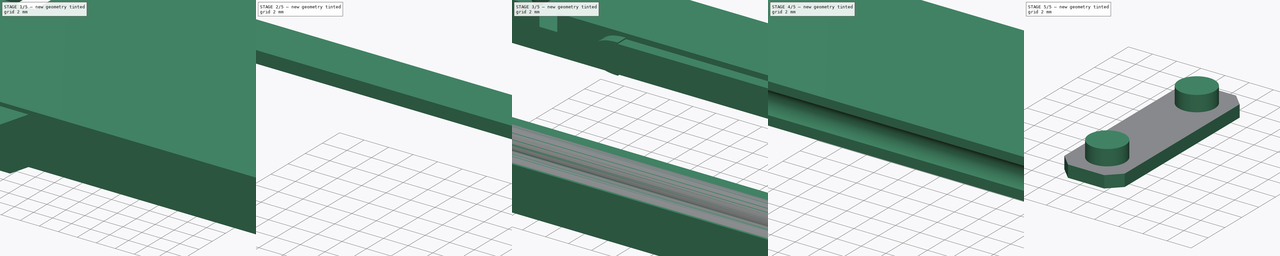
[diagram: build sequence overview — one tinted view per stage of 5, left to right]
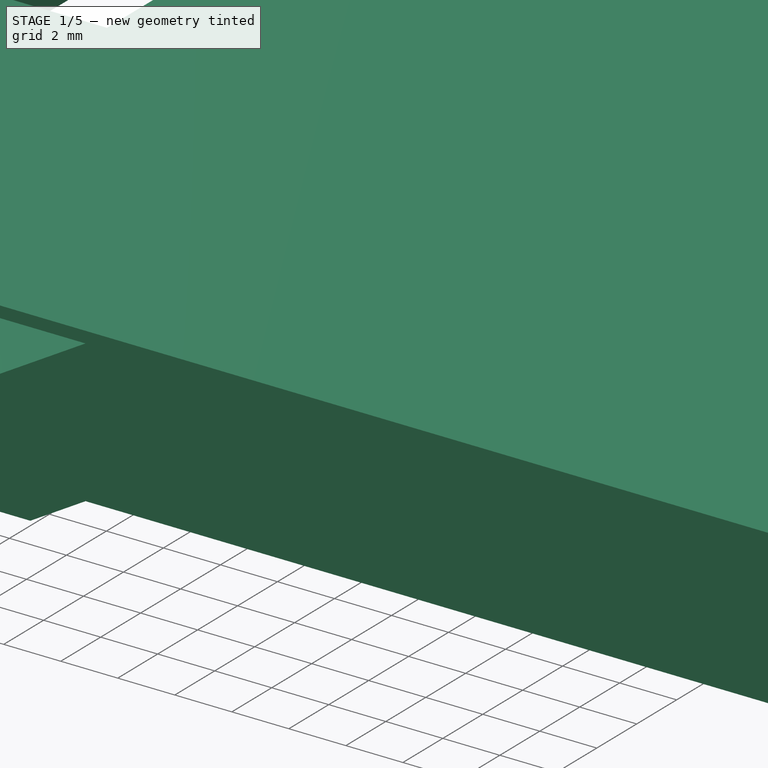
[diagram: stage 1 of 5 — iso view after this stage's code; geometry added in this stage tinted green]
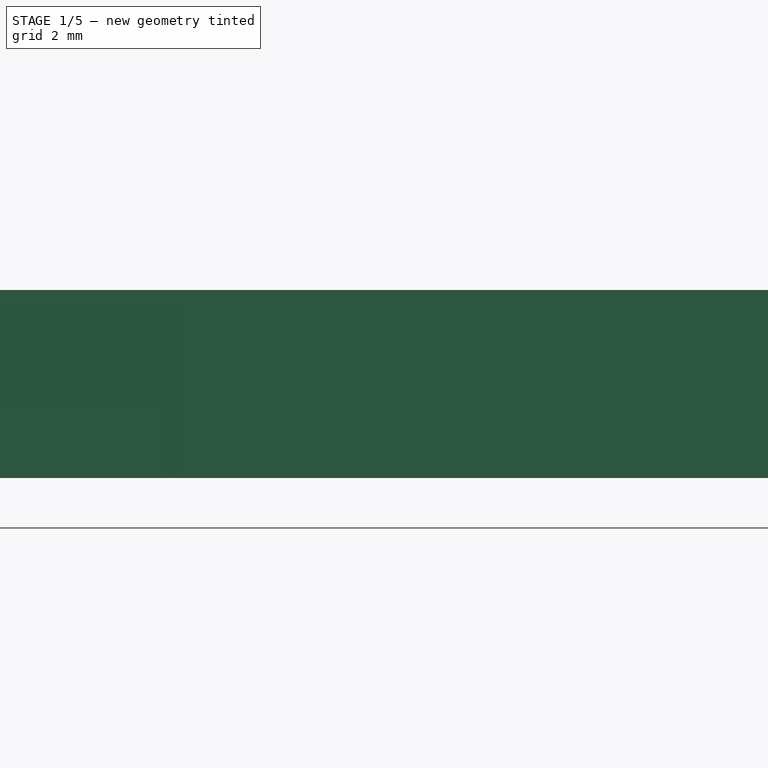
[diagram: stage 1 of 5 — front view after this stage's code; geometry added in this stage tinted green]
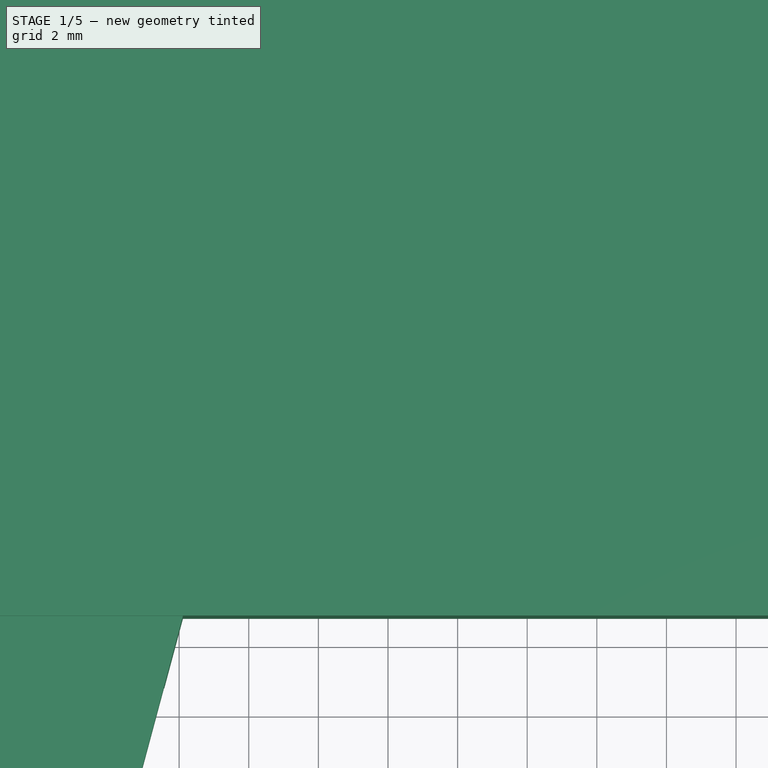
[diagram: stage 1 of 5 — top view after this stage's code; geometry added in this stage tinted green]
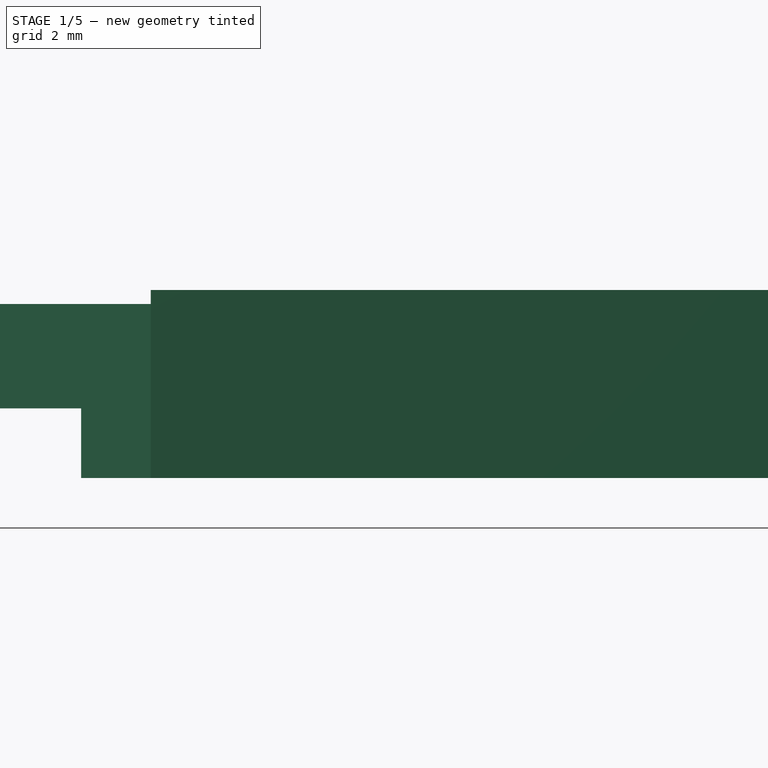
[diagram: stage 1 of 5 — right view after this stage's code; geometry added in this stage tinted green]
FCSTD DOCUMENT  (FreeCAD 2022.1021R26244 +5249 (Git))
Label: vernier_calipers
License: All rights reserved
LicenseURL: http://en.wikipedia.org/wiki/All_rights_reserved
objects: Sketcher::SketchObject×29, PartDesign::Pad×13, PartDesign::Pocket×12, Part::SubShapeBinder×11, PartDesign::SubShapeBinder×10, PartDesign::Plane×7, PartDesign::Chamfer×7, PartDesign::Boolean×6, Part::Feature×5, PartDesign::Solid×5, PartDesign::Body×4, Part::Part2DObjectPython×2, PartDesign::SubtractivePipe×2, PartDesign::Split×2, Spreadsheet::Sheet×1, PartDesign::Hole×1, PartDesign::Mirrored×1
note: 226 computed .brp shape members not serialized (recipe doc carries the construction recipe); baked Part::Feature solids carry a one-line shape summary decoded from their .brp

FEATURE [Spreadsheet::Sheet] Spreadsheet
  PythonMode = false
  ShowCells = 0
  TreeRank = 387
  cells = A1=Name; A3=Tool Head Width; A4=Ball Bearing Size; B4(ball_bearing_d)==3inch / 32; A5=Race Length; B5(ball_bearing_race)==35mm; A6=Vernier Angle; B6(vernier_angle)==30deg; A7=Vernier Height; B7(vernier_height)==5mm; A9=Tool Body; B9=Value; A10=Measurable Length; B10(measurable_length)==150mm; A11=Vernier Scale Angle; B11==14deg; A16=Jaw Parameters; B16=Value; A17=Jaw Tip angle; B17(jaw_tip_angle)==45deg; A18=Jaw Root angle; B18(jaw_root_angle)==15mm; A19=Jaw Inset radius; B19(jaw_inset_r)==0.8mm; A20=Inside Jaw Width; B20(jaw_inside_width)==7mm; A21=Inside Jaw Tip Length; B21(jaw_inside_tip)==5mm; A22=Inside Jaw Flat length; B22(jaw_inside_flat)==10mm; A23=Inside Jaw Length; B23(jaw_inside_length)==17.5mm; A25=Outer Jaw Length; B25(jaw_outside_length)==36mm; A26=Outer Jaw Tip Length; B26(jaw_outside_tip_length)==8.484999999999999mm
FEATURE [Part::Part2DObjectPython] Wire  # Draft 2D object (typed FeaturePython)
  Area = 1432.5
  ChamferSize = 0
  Closed = true
  End = (0.798871,43.8951,-9.55887e-07)
  FilletRadius = 0
  Length = 158.926
  MakeFace = true
  Placement = pos=(-0.00112892,0.0950741,-9.55887e-07) rot=(0,0,1;0rad)
  Points = (8) [(0.801129,28.7045,-2.82358e-14),(45.8,28.7935,-2.81968e-14),(45.8,43.8,0),(49.8,43.8,0),(49.8,59.2125,0),(0.8,59.2125,0),(0.8,43.8,0),(0.8,43.8,-2.84217e-14)]
  Start = (0.8,28.7996,-9.55887e-07)
  Subdivisions = 0
  TreeRank = 389
FEATURE [Part::Feature] Sketch006001
  TreeRank = 390
  shape: bbox 35 x 6.363 x 2e-07 mm, 0 faces, 0 solids (baked)
FEATURE [Part::Feature] Sketch006002
  TreeRank = 391
  shape: bbox 30.24 x 1.6 x 2e-07 mm, 0 faces, 0 solids (baked)
FEATURE [Part::Part2DObjectPython] Line  # Draft 2D object (typed FeaturePython)
  Area = 0
  ChamferSize = 0
  Closed = false
  End = (39.6187,54.4312,0)
  FilletRadius = 0
  Length = 28.6375
  MakeFace = true
  Points = (2) [(10.9812,54.4312,0),(39.6187,54.4312,0)]
  Start = (10.9812,54.4312,0)
  Subdivisions = 0
  TreeRank = 392
FEATURE [Part::Feature] Sketch006003
  TreeRank = 393
  shape: bbox 30.24 x 1.6 x 2e-07 mm, 0 faces, 0 solids (baked)
FEATURE [Part::Feature] Sketch006004
  TreeRank = 394
  shape: bbox 35 x 6.363 x 2e-07 mm, 0 faces, 0 solids (baked)
FEATURE [Part::SubShapeBinder] Import001  label="Import001(Sketch006002)"
  BindCopyOnChange = 0
  BindMode = 0
  ClaimChildren = false
  Context = -> Body001 [Import001.]
  EdgeTolerance = 1e-06
  FillStyle = 0
  Fuse = false
  MakeFace = false
  MergeEdges = true
  OffsetFill = false
  OffsetIntersection = false
  OffsetJoinType = 0
  OffsetOpenResult = false
  Outline = false
  PartialLoad = false
  Relative = true
  SplitEdges = false
  Support = -> [Sketch006002]
  TightBound = false
  TreeRank = 88
  _Version = 8
FEATURE [Part::SubShapeBinder] Import003  label="Import003(Line)"
  BindCopyOnChange = 0
  BindMode = 0
  ClaimChildren = false
  Context = -> Body001 [Import003.]
  EdgeTolerance = 1e-06
  FillStyle = 0
  Fuse = false
  MakeFace = false
  MergeEdges = true
  OffsetFill = false
  OffsetIntersection = false
  OffsetJoinType = 0
  OffsetOpenResult = false
  Outline = false
  PartialLoad = false
  Relative = true
  SplitEdges = false
  Support = -> [Line]
  TightBound = false
  TreeRank = 90
  _Version = 8
FEATURE [Part::Feature] Pipe_cs
  TreeRank = 395
  shape: bbox 49 x 7.653 x 2.1e-06 mm, 0 faces, 0 solids (baked)
FEATURE [Part::SubShapeBinder] Import006  label="Import006(Sketch006005)"
  BindCopyOnChange = 0
  BindMode = 0
  ClaimChildren = false
  EdgeTolerance = 1e-06
  FillStyle = 0
  Fuse = false
  MakeFace = false
  MergeEdges = true
  OffsetFill = false
  OffsetIntersection = false
  OffsetJoinType = 0
  OffsetOpenResult = false
  Outline = false
  PartialLoad = false
  Relative = true
  SplitEdges = false
  Support = -> [Sketch006005]
  TightBound = false
  TreeRank = 396
  _Version = 8
FEATURE [Part::SubShapeBinder] Import007  label="Import007(Pipe_cs)"
  BindCopyOnChange = 0
  BindMode = 0
  ClaimChildren = false
  Context = -> Body001 [Import007.]
  EdgeTolerance = 1e-06
  FillStyle = 0
  Fuse = false
  MakeFace = false
  MergeEdges = true
  OffsetFill = false
  OffsetIntersection = false
  OffsetJoinType = 0
  OffsetOpenResult = false
  Outline = false
  PartialLoad = false
  Relative = true
  SplitEdges = false
  Support = -> [Pipe_cs]
  TightBound = false
  TreeRank = 181
  _Version = 8
FEATURE [Sketcher::SketchObject] Sketch001
  ArcFitTolerance = 1e-06
  AttachmentSupport = -> [XY_Plane001]
  ExternalBSplineMaxDegree = 5
  ExternalBSplineTolerance = 0.0001
  ExternalGeometry = -> [Import007]
  FullyConstrained = false
  InternalTolerance = 1e-06
  MakeInternals = false
  MapMode = 5
  Support = -> [XY_Plane001]
  TreeRank = 29
  expr: Constraints[10] = Spreadsheet.jaw_inside_flat
  expr: Constraints[12] = Spreadsheet.jaw_tip_angle
  expr: Constraints[13] = Spreadsheet.jaw_inside_tip
  expr: Constraints[15] = Spreadsheet.jaw_root_angle
  expr: Constraints[16] = Spreadsheet.jaw_inside_width
  expr: Constraints[37] = Spreadsheet.jaw_inside_length
  expr: Constraints[46] = Spreadsheet.jaw_tip_angle
  expr: Constraints[48] = Spreadsheet.jaw_outside_tip_length
  expr: Constraints[49] = Spreadsheet.jaw_root_angle
  expr: Constraints[51] = 2 * Spreadsheet.jaw_inset_r
  expr: Constraints[9] = Spreadsheet.jaw_inset_r
  sketch-geometry (18):
    g0: ArcOfCircle CenterX=0 CenterY=28.8 CenterZ=0 NormalX=0 NormalY=0 NormalZ=1 AngleXU=0 Radius=0.8 StartAngle=4.71239 EndAngle=6.28319
    g1: LineSegment StartX=-6.76117 StartY=59.5 StartZ=0 EndX=-6.76117 EndY=69.5 EndZ=0
    g2: LineSegment StartX=0.8 StartY=36 StartZ=0 EndX=-14.0385 EndY=36 EndZ=0
    g3: ArcOfCircle CenterX=-6.76117 CenterY=58.7 CenterZ=0 NormalX=0 NormalY=0 NormalZ=1 AngleXU=0 Radius=0.8 StartAngle=1.5708 EndAngle=3.14159
    g4: LineSegment StartX=-7.56117 StartY=58.7 StartZ=0 EndX=-7.56117 EndY=52 EndZ=0
    g5: LineSegment StartX=5.9998 StartY=5.9998 StartZ=0 EndX=12.1091 EndY=28.8 EndZ=0
    g6: LineSegment StartX=-7.56117 StartY=52 StartZ=0 EndX=0.8 EndY=52 EndZ=0
    g7: LineSegment StartX=-6.76117 StartY=69.5 StartZ=0 EndX=-10.2967 EndY=65.9645 EndZ=0
    g8: LineSegment StartX=-10.2967 StartY=65.9645 StartZ=0 EndX=-14.0385 EndY=52 EndZ=0
    g9: LineSegment StartX=-13.7612 StartY=53.0349 StartZ=0 EndX=-14.0385 EndY=52 EndZ=0
    g10: LineSegment StartX=0.8 StartY=28.8 StartZ=0 EndX=0.8 EndY=36 EndZ=0
    g11: LineSegment StartX=5.9998 StartY=5.9998 StartZ=0 EndX=9e-16 EndY=9e-16 EndZ=0
    g12: LineSegment StartX=0 StartY=28 StartZ=0 EndX=0 EndY=0 EndZ=0
    g13: LineSegment StartX=12.1091 StartY=28.8 StartZ=0 EndX=49.8 EndY=28.8 EndZ=0
    g14: LineSegment StartX=0.8 StartY=52 StartZ=0 EndX=0.8 EndY=59.2125 EndZ=0
    g15: LineSegment StartX=0.8 StartY=59.2125 StartZ=0 EndX=49.8 EndY=59.2125 EndZ=0
    g16: LineSegment StartX=49.8 StartY=59.2125 StartZ=0 EndX=49.8 EndY=28.8 EndZ=0
    g17: LineSegment StartX=-14.0385 StartY=36 StartZ=0 EndX=-14.0385 EndY=52 EndZ=0
  constraints (52):
    c: Horizontal(g0,g0)
    c: Horizontal(g2)
    c: Coincident(g3,g1)
    c: Coincident(g4,g3)
    c: Vertical(g4)
    c: Coincident(g6,g4)
    c: Horizontal(g3,g3)
    c: Vertical(g3,g1)
    c: Vertical(g1)
    c: Radius(g3) = 0.8
    c: DistanceY(g1,g1) = 10
    c: Coincident(g7,g1)
    c: Angle(g7,g1) = 0.785398
    c: Distance(g7) = 5
    c: Coincident(g8,g7)
    c: Angle(g8,g1) = 0.261799
    c: DistanceX(g9,g3) = 7
    c: PointOnObject(g9,g8)
    c: Coincident(g9,g8)
    c: Horizontal(g6)
    c: Coincident(g10,g0)
    c: Coincident(g10,g2)
    c: Vertical(g10)
    c: Coincident(g11,g5)
    c: Coincident(g12,g0)
    c: Coincident(g12,g11)
    c: Horizontal(g13)
    c: Horizontal(g13,g0)
    c: Vertical(g14)
    c: Coincident(g15,g14)
    c: Horizontal(g15)
    c: Coincident(g14,g-3)
    c: Vertical(g15,g-4)
    c: Coincident(g5,g13)
    c: Coincident(g6,g14)
    c: Vertical(g16)
    c: Coincident(g16,g15)
    c: DistanceY(g6,g1) = 17.5
    c: Coincident(g17,g2)
    c: Coincident(g17,g8)
    c: Vertical(g17)
    c: Horizontal(g8,g4)
    c: Coincident(g13,g16)
    c: DistanceY(g11,g2) = 36
    c: Coincident(g11,g-1)
    c: Distance(g12) = 28
    c: Angle(g11,g12) = 0.785398
    c: Vertical(g12)
    c: Distance(g11) = 8.485
    c: Angle(g5,g12) = 0.261799
    c: Vertical(g0,g11)
    c: Diameter(g0) = 1.6
FEATURE [PartDesign::Pad] Pad
  AddSubType = 0
  AlongSketchNormal = false
  AutoTaperInnerAngle = true
  CheckUpToFaceLimits = true
  ClaimChildren = false
  Direction = (0,0,1)
  Fit = 0
  FitJoin = 0
  InnerFit = 0
  InnerFitJoin = 0
  Length = 2
  Length2 = 100
  Linearize = true
  NewSolid = true
  Profile = -> Sketch001
  Refine = true
  Reversed = true
  Suppress = false
  TaperInnerAngle = 0
  TaperInnerAngleRev = 0
  TreeRank = 31
  Type = 0
  _ProfileBasedVersion = 1
FEATURE [Sketcher::SketchObject] Sketch002
  ArcFitTolerance = 1e-06
  AttachmentSupport = -> [Pad]
  ExternalBSplineMaxDegree = 5
  ExternalBSplineTolerance = 0.0001
  ExternalGeometry = -> [Pad,Sketch001]
  FullyConstrained = true
  InternalTolerance = 1e-06
  MakeInternals = false
  MapMode = 5
  Placement = pos=(0,0,-2) rot=(1,0,0;3.14159rad)
  Support = -> [Pad]
  TreeRank = 157
  sketch-geometry (4):
    g0: LineSegment StartX=0 StartY=0 StartZ=0 EndX=6 EndY=-6 EndZ=0
    g1: LineSegment StartX=6 StartY=-6 StartZ=0 EndX=12.1092 EndY=-28.8 EndZ=0
    g2: LineSegment StartX=12.1092 StartY=-28.8 StartZ=0 EndX=0.8 EndY=-28.8 EndZ=0
    g3: LineSegment StartX=0 StartY=0 StartZ=0 EndX=-1e-16 EndY=-28 EndZ=0
  constraints (10):
    c: Coincident(g0,g-1)
    c: Coincident(g1,g0)
    c: Horizontal(g2)
    c: Coincident(g3,g0)
    c: Angle(g3,g0) = 0.785398
    c: Angle(g3,g1) = 0.261799
    c: DistanceY(g0,g0) = 6
    c: Coincident(g1,g2)
    c: Coincident(g3,g-4)
    c: Coincident(g2,g-4)
FEATURE [PartDesign::Plane] DatumPlane
  AttachmentOffset = pos=(0,0,1.75) rot=(0,0,1;0rad)
  AttachmentSupport = -> [Pad]
  Length = 49.8
  MapMode = 5
  MinimumLength = 10
  MinimumWidth = 10
  Placement = pos=(0,0,1.75) rot=(0,0,1;0rad)
  ResizeMode = 0
  Support = -> [Pad]
  TreeRank = 86
  Width = 59.2125
FEATURE [Sketcher::SketchObject] Sketch006005
  ArcFitTolerance = 1e-06
  AttachmentSupport = -> [DatumPlane]
  ExternalBSplineMaxDegree = 5
  ExternalBSplineTolerance = 0.0001
  ExternalGeometry = -> [Import001,Import003]
  FullyConstrained = false
  InternalTolerance = 1e-06
  MakeInternals = false
  MapMode = 5
  Placement = pos=(0,0,1.75) rot=(0,0,1;0rad)
  Support = -> [DatumPlane]
  TreeRank = 87
  expr: Constraints[13] = 1.5mm + Spreadsheet.ball_bearing_d
  sketch-geometry (8):
    g0: ArcOfCircle CenterX=39.6187 CenterY=54.4312 CenterZ=0 NormalX=0 NormalY=0 NormalZ=1 AngleXU=0 Radius=1.94062 StartAngle=4.71239 EndAngle=7.85398
    g1: ArcOfCircle CenterX=10.9812 CenterY=54.4312 CenterZ=0 NormalX=0 NormalY=0 NormalZ=1 AngleXU=0 Radius=1.94062 StartAngle=1.5708 EndAngle=4.71239
    g2: ArcOfCircle CenterX=10.9812 CenterY=33.1688 CenterZ=0 NormalX=0 NormalY=0 NormalZ=1 AngleXU=0 Radius=1.94062 StartAngle=1.5708 EndAngle=4.71239
    g3: ArcOfCircle CenterX=39.6188 CenterY=33.1688 CenterZ=0 NormalX=0 NormalY=0 NormalZ=1 AngleXU=0 Radius=1.94062 StartAngle=4.71239 EndAngle=7.85398
    g4: LineSegment StartX=39.6187 StartY=52.4906 StartZ=0 EndX=10.9812 EndY=52.4906 EndZ=0
    g5: LineSegment StartX=10.9812 StartY=56.3719 StartZ=0 EndX=39.6187 EndY=56.4219 EndZ=0
    g6: LineSegment StartX=39.6188 StartY=35.1094 StartZ=0 EndX=10.9812 EndY=35.1094 EndZ=0
    g7: LineSegment StartX=10.9812 StartY=31.2281 StartZ=0 EndX=39.6188 EndY=31.2281 EndZ=0
  constraints (23):
    c: Coincident(g0,g-6)
    c: Vertical(g0,g0)
    c: Vertical(g0,g0)
    c: Vertical(g1,g1)
    c: Vertical(g1,g1)
    c: Vertical(g2,g2)
    c: Vertical(g2,g2)
    c: Vertical(g3,g3)
    c: Vertical(g3,g3)
    c: Coincident(g4,g0)
    c: Coincident(g4,g1)
    c: Coincident(g5,g1)
    c: Equal(g0,g3)
    c: Diameter(g3) = 3.88125
    c: Coincident(g2,g-5)
    c: Symmetric(g-4,g-3,g3)
    c: Coincident(g1,g-7)
    c: Equal(g0,g1)
    c: Coincident(g6,g3)
    c: Coincident(g6,g2)
    c: Horizontal(g6)
    c: Coincident(g7,g2)
    c: Coincident(g7,g3)
FEATURE [PartDesign::Plane] DatumPlane001
  AttachmentSupport = -> [Sketch006005]
  Length = 24.1031
  MapMode = 7
  MinimumLength = 10
  MinimumWidth = 10
  Placement = pos=(10.9812,35.1094,1.75) rot=(0.57735,0.57735,0.57735;2.0944rad)
  ResizeMode = 0
  Support = -> [Sketch006005]
  TreeRank = 91
  Width = 10
FEATURE [Sketcher::SketchObject] Sketch006006
  ArcFitTolerance = 1e-06
  AttachmentSupport = -> [DatumPlane001]
  ExternalBSplineMaxDegree = 5
  ExternalBSplineTolerance = 0.0001
  ExternalGeometry = -> [Import006]
  FullyConstrained = false
  InternalTolerance = 1e-06
  MakeInternals = false
  MapMode = 5
  Placement = pos=(10.9812,35.1094,1.75) rot=(0.57735,0.57735,0.57735;2.0944rad)
  Support = -> [DatumPlane001]
  TreeRank = 304
  expr: Constraints[1] = Spreadsheet.ball_bearing_d + 0.2mm
  sketch-geometry (2):
    g0: Circle CenterX=0 CenterY=0 CenterZ=0 NormalX=0 NormalY=0 NormalZ=1 AngleXU=0 Radius=1.29062
    g1: Circle [constr] CenterX=-3.88125 CenterY=0 CenterZ=0 NormalX=0 NormalY=0 NormalZ=1 AngleXU=0 Radius=0.840505
  constraints (3):
    c: Coincident(g0,g-1)
    c: Diameter(g0) = 2.58125
    c: Coincident(g1,g-3)
FEATURE [Sketcher::SketchObject] Sketch006007
  ArcFitTolerance = 1e-06
  AttachmentSupport = -> [DatumPlane001,Sketch006005]
  ExternalBSplineMaxDegree = 5
  ExternalBSplineTolerance = 0.0001
  ExternalGeometry = -> [Sketch006006,Sketch006005]
  FullyConstrained = true
  InternalTolerance = 1e-06
  MakeInternals = false
  MapMode = 6
  Placement = pos=(10.9812,52.4906,1.75) rot=(0.57735,-0.57735,0.57735;4.18879rad)
  Support = -> [DatumPlane001,Sketch006005]
  TreeRank = 171
  sketch-geometry (1):
    g0: Circle CenterX=-7.1e-15 CenterY=0 CenterZ=0 NormalX=0 NormalY=0 NormalZ=1 AngleXU=0 Radius=1.29062
  constraints (2):
    c: Equal(g0,g-3)
    c: Coincident(g0,g-4)
FEATURE [PartDesign::Pad] Pad003
  AddSubType = 0
  AlongSketchNormal = false
  AutoTaperInnerAngle = true
  BaseFeature = -> Pad
  CheckUpToFaceLimits = true
  ClaimChildren = false
  Direction = (0,0,-1)
  Fit = 0
  FitJoin = 0
  InnerFit = 0
  InnerFitJoin = 0
  Length = 5
  Length2 = 100
  Linearize = true
  NewSolid = false
  Profile = -> Sketch002
  Refine = true
  Reversed = true
  Suppress = false
  TaperInnerAngle = 0
  TaperInnerAngleRev = 0
  TreeRank = 159
  Type = 0
  _ProfileBasedVersion = 1
FEATURE [Sketcher::SketchObject] Sketch003
  ArcFitTolerance = 1e-06
  AttachmentSupport = -> [Pad003]
  ExternalBSplineMaxDegree = 5
  ExternalBSplineTolerance = 0.0001
  ExternalGeometry = -> [Pad003]
  FullyConstrained = true
  InternalTolerance = 1e-06
  MakeInternals = false
  MapMode = 5
  Placement = pos=(0,0,-2) rot=(1,0,0;3.14159rad)
  Support = -> [Pad003]
  TreeRank = 34
  sketch-geometry (4):
    g0: LineSegment StartX=6 StartY=-6 StartZ=0 EndX=0 EndY=0 EndZ=0
    g1: LineSegment StartX=6 StartY=-6 StartZ=0 EndX=11.5733 EndY=-26.8 EndZ=0
    g2: LineSegment StartX=0 StartY=-26.8 StartZ=0 EndX=0 EndY=0 EndZ=0
    g3: LineSegment StartX=11.5733 StartY=-26.8 StartZ=0 EndX=0 EndY=-26.8 EndZ=0
  constraints (11):
    c: Coincident(g1,g0)
    c: Coincident(g2,g0)
    c: Vertical(g2)
    c: Coincident(g0,g-1)
    c: Angle(g2,g0) = 0.785398
    c: Angle(g2,g1) = 0.261799
    c: Coincident(g3,g1)
    c: Coincident(g3,g2)
    c: Horizontal(g3)
    c: DistanceY(g0,g0) = 6
    c: DistanceY(g-3,g2) = 2
FEATURE [PartDesign::Pocket] Pocket
  AddSubType = 1
  AutoTaperInnerAngle = true
  BaseFeature = -> Pad003
  CheckUpToFaceLimits = true
  ClaimChildren = false
  Fit = 0
  FitJoin = 0
  InnerFit = 0
  InnerFitJoin = 0
  Length = 2
  Length2 = 100
  Linearize = true
  NewSolid = false
  Profile = -> Sketch003
  Refine = true
  Suppress = false
  TaperInnerAngle = 0
  TaperInnerAngleRev = 0
  TreeRank = 35
  Type = 0
  _ProfileBasedVersion = 1
  _Siblings = -> [Pad003,Pad]
  _Version = 1
FEATURE [Sketcher::SketchObject] Sketch006017
  ArcFitTolerance = 1e-06
  AttachmentSupport = -> [Pocket]
  ExternalBSplineMaxDegree = 5
  ExternalBSplineTolerance = 0.0001
  ExternalGeometry = -> [Pocket,Sketch001]
  FullyConstrained = true
  InternalTolerance = 1e-06
  MakeInternals = false
  MapMode = 5
  Support = -> [Pocket]
  TreeRank = 275
  sketch-geometry (6):
    g0: LineSegment StartX=0.8 StartY=28.8 StartZ=0 EndX=49.81 EndY=28.8 EndZ=0
    g1: LineSegment StartX=49.81 StartY=28.8 StartZ=0 EndX=49.81 EndY=44.006 EndZ=0
    g2: LineSegment StartX=49.81 StartY=44.006 StartZ=0 EndX=49.8 EndY=44.006 EndZ=0
    g3: LineSegment StartX=49.8 StartY=44.006 StartZ=0 EndX=49.8 EndY=59.2 EndZ=0
    g4: LineSegment StartX=49.8 StartY=59.2 StartZ=0 EndX=0.8 EndY=59.2 EndZ=0
    g5: LineSegment StartX=0.8 StartY=28.8 StartZ=0 EndX=0.8 EndY=59.2 EndZ=0
  constraints (17):
    c: Coincident(g0,g1)
    c: Coincident(g1,g2)
    c: Coincident(g2,g3)
    c: Horizontal(g2)
    c: Coincident(g3,g4)
    c: Vertical(g3)
    c: Horizontal(g4)
    c: Horizontal(g0)
    c: Coincident(g5,g0)
    c: Coincident(g5,g4)
    c: Vertical(g5)
    c: Distance(g5) = 30.4
    c: Distance(g4) = 49
    c: PointOnObject(g-3,g5)
    c: Vertical(g1)
    c: Coincident(g0,g-4)
    c: PointOnObject(g-4,g2)
FEATURE [PartDesign::Pad] Pad004
  AddSubType = 0
  AlongSketchNormal = false
  AutoTaperInnerAngle = true
  CheckUpToFaceLimits = true
  ClaimChildren = false
  Direction = (0,0,1)
  Fit = 0
  FitJoin = 0
  InnerFit = 0
  InnerFitJoin = 0
  Length = 3.4
  Length2 = 100
  Linearize = true
  NewSolid = true
  Profile = -> Sketch006017
  Refine = true
  Suppress = false
  TaperInnerAngle = 0
  TaperInnerAngleRev = 0
  TreeRank = 276
  Type = 0
  _ProfileBasedVersion = 1
FEATURE [PartDesign::SubShapeBinder] Reference006  label="Reference006(Split_i0)"
  BindCopyOnChange = 0
  BindMode = 0
  ClaimChildren = false
  EdgeTolerance = 1e-06
  FillStyle = 0
  Fuse = true
  MakeFace = true
  MergeEdges = true
  OffsetFill = false
  OffsetIntersection = false
  OffsetJoinType = 0
  OffsetOpenResult = false
  Outline = false
  PartialLoad = false
  Relative = true
  SplitEdges = false
  Support = -> [Split_i0]
  TightBound = false
  TreeRank = 305
  _Version = 8
FEATURE [PartDesign::SubShapeBinder] Reference007  label="Reference007(Pocket)"
  BindCopyOnChange = 0
  BindMode = 0
  ClaimChildren = false
  EdgeTolerance = 1e-06
  FillStyle = 0
  Fuse = true
  MakeFace = true
  MergeEdges = true
  OffsetFill = false
  OffsetIntersection = false
  OffsetJoinType = 0
  OffsetOpenResult = false
  Outline = false
  PartialLoad = false
  Relative = true
  SplitEdges = false
  Support = -> [Pocket]
  TightBound = false
  TreeRank = 306
  _Version = 8
FEATURE [PartDesign::Boolean] Boolean001
  ClaimAllChildren = false
  ExportMode = 0
  Group = -> [Reference006,Reference007]
  NewSolid = true
  Refine = true
  Suppress = false
  TreeRank = 312
  Type = 0
  _ExportChildren = -> [Reference006,Reference007]
  _GroupVersion = 1
FEATURE [PartDesign::SubtractivePipe] Pipe001  label="Jaw"
  AddSubType = 1
  AuxilleryCurvelinear = true
  AuxillerySpineTangent = false
  BaseFeature = -> Boolean001
  Binormal = (0,0,0)
  ClaimChildren = false
  Fit = 0
  FitJoin = 0
  InnerFit = 0
  InnerFitJoin = 0
  Linearize = true
  Mode = 0
  NewSolid = false
  Profile = -> Sketch006006
  Refine = true
  Spine = -> Sketch006005 [Edge8,Edge7,Edge6,Edge5]
  SpineTangent = false
  Suppress = false
  Transformation = 0
  Transition = 1
  TreeRank = 311
  _ProfileBasedVersion = 2
FEATURE [PartDesign::Body] Body002  label="Depth Gauge Support"
  AutoGroupSolids = true
  ClaimAllChildren = false
  ExportMode = 0
  Group = -> [Sketch006030,Import010,Pad011,Chamfer006,Sketch006031,Pocket014]
  Origin = -> Origin002
  Tip = -> Pocket014
  TreeRank = 397
  _ExportChildren = -> [Import010,Pocket014]
  _GroupVersion = 1
FEATURE [PartDesign::Body] Body  label="Fixed Jaw"
  AutoGroupSolids = true
  ClaimAllChildren = false
  ExportMode = 0
  Group = -> [Sketch,Sketch004,Sketch006008,Import004,Import005,Import,Sketch006023,Import009,Sketch006024,DatumPlane003,Sketch006027,Pad002,Pocket001,Pocket004,Chamfer,Boolean003,Pad009,Chamfer005,Pocket009,Pocket011,Sketch006029,Pocket013]
  Origin = -> Origin
  Tip = -> Pocket013
  TreeRank = 474
  _ExportChildren = -> [Import004,Import005,Import,Import009,DatumPlane003,Pocket013]
  _GroupVersion = 1
FEATURE [PartDesign::SubtractivePipe] Pipe002  label="Clearance Intake"
  AddSubType = 1
  AuxilleryCurvelinear = true
  AuxillerySpineTangent = false
  BaseFeature = -> Pipe001
  Binormal = (0,0,0)
  ClaimChildren = false
  Fit = 0.1
  FitJoin = 0
  InnerFit = 0
  InnerFitJoin = 0
  Linearize = true
  Mode = 0
  NewSolid = false
  Profile = -> Sketch006006
  Refine = true
  Spine = -> Sketch006005 [Edge5,Edge6,Edge7]
  SpineTangent = false
  Suppress = false
  Transformation = 0
  Transition = 1
  TreeRank = 526
  _ProfileBasedVersion = 2
FEATURE [PartDesign::SubShapeBinder] Binder  label="Binder(Boolean004)"
  BindCopyOnChange = 0
  BindMode = 0
  ClaimChildren = false
  Context = -> Body003 [Binder.]
  EdgeTolerance = 1e-06
  FillStyle = 0
  Fuse = false
  MakeFace = true
  MergeEdges = true
  OffsetFill = false
  OffsetIntersection = false
  OffsetJoinType = 0
  OffsetOpenResult = false
  Outline = false
  PartialLoad = false
  Relative = true
  SplitEdges = false
  Support = -> [Boolean004[Face30]]
  TightBound = false
  TreeRank = 619
  _Version = 8
FEATURE [PartDesign::Plane] DatumPlane006
  AttachmentOffset = pos=(0,0,8.2) rot=(0,0,1;0rad)
  AttachmentSupport = -> [Chamfer007]
  Length = 63.8485
  MapMode = 5
  MinimumLength = 10
  MinimumWidth = 10
  Placement = pos=(0,43.8,-1.8e-15) rot=(0,0.707107,0.707107;3.14159rad)
  ResizeMode = 0
  Support = -> [Chamfer007]
  TreeRank = 626
  Width = 10
FEATURE [PartDesign::SubShapeBinder] Reference012  label="Reference012(Body003)"
  BindCopyOnChange = 0
  BindMode = 0
  ClaimChildren = false
  EdgeTolerance = 1e-06
  FillStyle = 0
  Fuse = true
  MakeFace = true
  MergeEdges = true
  OffsetFill = false
  OffsetIntersection = false
  OffsetJoinType = 0
  OffsetOpenResult = false
  Outline = false
  PartialLoad = false
  Relative = true
  SplitEdges = false
  Support = -> [Body003]
  TightBound = false
  TreeRank = 631
  _Version = 8
FEATURE [PartDesign::Body] Body001  label="Moving Jaw"
  AutoGroupSolids = true
  ClaimAllChildren = false
  ExportMode = 0
  Group = -> [Sketch001,Sketch002,Sketch003,Pad,Pad003,Pocket,Sketch006017,DatumPlane,Import001,Import003,DatumPlane001,Sketch006005,Sketch006006,Sketch006007,Split_i0,Sketch006009,Import007,Sketch006011,Sketch006012,Pad004,Sketch006018,Pad005,Sketch006010,Sketch006019,Sketch006021,Sketch006025,Sketch006022,DatumPlane002,Sketch006026,Sketch006028,Sketch006034,Boolean,Split,Pocket006,Pocket007,Pad012,Chamfer008,+18 more]
  Origin = -> Origin001
  Tip = -> Boolean005
  TreeRank = 388
  _ExportChildren = -> [Pocket,DatumPlane,Import001,Import003,DatumPlane001,Sketch006007,Import007,Pad004,Pad005,DatumPlane002,Sketch006034,Boolean005,Chamfer007,DatumPlane004,DatumPlane005]
  _GroupVersion = 1
FEATURE [PartDesign::Split] Split
  BaseFeature = -> Boolean
  Fragment = false
  Mode = 0
  NewSolid = false
  Solids = -> [Split_i0,Split_i1]
  Suppress = false
  Tolerance = 0
  TreeRank = 169
  _Version = 1
FEATURE [PartDesign::Solid] Split_i0
  Active = false
  Parent = -> Split
  TreeRank = 170
FEATURE [PartDesign::Solid] Split001_i2
  Active = false
  Parent = -> Split001
  TreeRank = 638
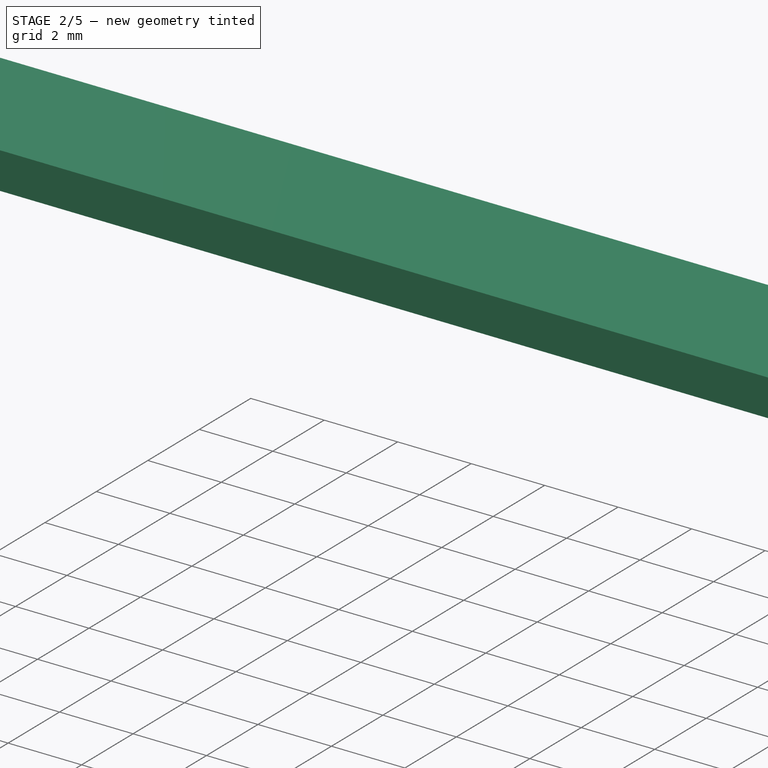
[diagram: stage 2 of 5 — iso view after this stage's code; geometry added in this stage tinted green]
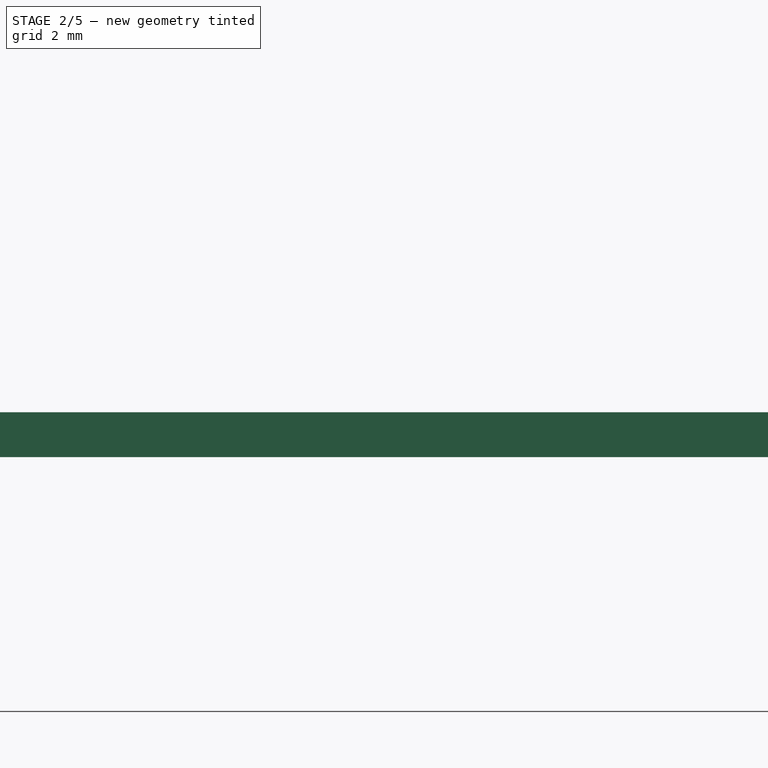
[diagram: stage 2 of 5 — front view after this stage's code; geometry added in this stage tinted green]
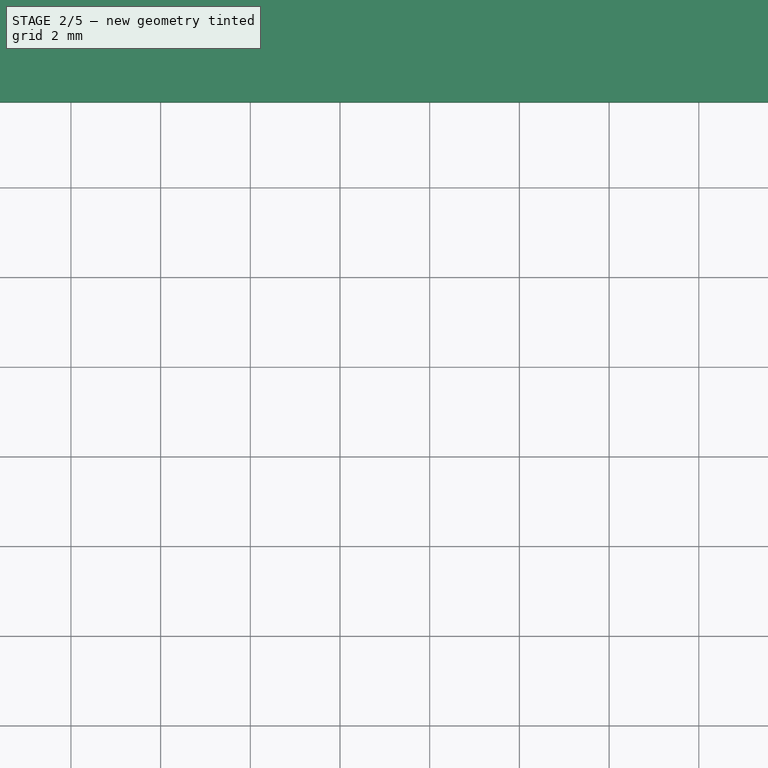
[diagram: stage 2 of 5 — top view after this stage's code; geometry added in this stage tinted green]
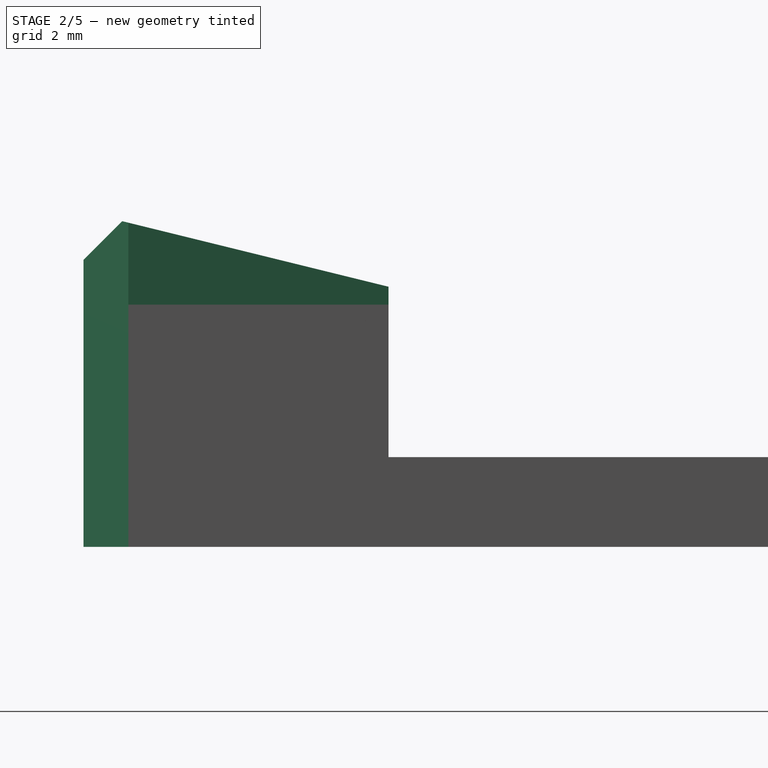
[diagram: stage 2 of 5 — right view after this stage's code; geometry added in this stage tinted green]
FEATURE [PartDesign::Pocket] Pocket005
  AddSubType = 1
  AutoTaperInnerAngle = true
  BaseFeature = -> Pipe002
  CheckUpToFaceLimits = true
  ClaimChildren = false
  Fit = 0.2
  FitJoin = 0
  InnerFit = 0
  InnerFitJoin = 0
  Length = 1
  Length2 = 100
  Linearize = true
  NewSolid = false
  Profile = -> Sketch006009
  Refine = true
  Suppress = false
  TaperInnerAngle = 0
  TaperInnerAngleRev = 0
  TreeRank = 310
  Type = 0
  _ProfileBasedVersion = 1
  _Version = 1
FEATURE [Sketcher::SketchObject] Sketch006010
  ArcFitTolerance = 1e-06
  AttachmentSupport = -> [Pocket005]
  ExternalBSplineMaxDegree = 5
  ExternalBSplineTolerance = 0.0001
  ExternalGeometry = -> [Pocket005]
  FullyConstrained = true
  InternalTolerance = 1e-06
  MakeInternals = false
  MapMode = 5
  Placement = pos=(0,0,-1) rot=(1,0,0;3.14159rad)
  Support = -> [Pocket005]
  TreeRank = 302
  sketch-geometry (2):
    g0: Circle CenterX=4.25 CenterY=-55.3859 CenterZ=0 NormalX=0 NormalY=0 NormalZ=1 AngleXU=0 Radius=1.5
    g1: Circle CenterX=46.35 CenterY=-55.3859 CenterZ=0 NormalX=0 NormalY=0 NormalZ=1 AngleXU=0 Radius=1.5
  constraints (4):
    c: Symmetric(g-6,g-5,g0)
    c: Symmetric(g-4,g-3,g1)
    c: Equal(g1,g0)
    c: Diameter(g1) = 3
FEATURE [PartDesign::Hole] Hole  label="Screw Holes"
  AddSubType = 1
  BaseFeature = -> Pocket005
  ClaimChildren = false
  CustomThreadClearance = 0
  Depth = 25
  DepthType = 0
  Diameter = 2.5
  DrillForDepth = false
  DrillPoint = 1
  DrillPointAngle = 118
  Fit = 0
  FitJoin = 0
  HoleCutCountersinkAngle = 90
  HoleCutCustomValues = false
  HoleCutDepth = 0
  HoleCutDiameter = 6.1
  HoleCutType = 0
  InnerFit = 0
  InnerFitJoin = 0
  Linearize = true
  ModelThread = false
  NewSolid = false
  Profile = -> Sketch006010
  Refine = true
  Suppress = false
  Tapered = false
  TaperedAngle = 90
  ThreadClass = 0
  ThreadDepth = 25
  ThreadDepthType = 0
  ThreadDirection = 0
  ThreadFit = 0
  ThreadSize = 9
  ThreadType = 1
  Threaded = true
  TreeRank = 309
  UseCustomThreadClearance = false
  _ProfileBasedVersion = 1
FEATURE [Sketcher::SketchObject] Sketch006018
  ArcFitTolerance = 1e-06
  AttachmentSupport = -> [XZ_Plane001]
  ExternalBSplineMaxDegree = 5
  ExternalBSplineTolerance = 0.0001
  ExternalGeometry = -> [Hole]
  FullyConstrained = false
  InternalTolerance = 1e-06
  MakeInternals = false
  MapMode = 5
  Placement = pos=(0,0,0) rot=(1,0,0;1.5708rad)
  Support = -> [XZ_Plane001]
  TreeRank = 281
  sketch-geometry (8):
    g0: LineSegment StartX=0 StartY=1 StartZ=0 EndX=5 EndY=3 EndZ=0
    g1: LineSegment [constr] StartX=0 StartY=1 StartZ=0 EndX=0 EndY=3 EndZ=0
    g2: LineSegment [constr] StartX=0 StartY=3 StartZ=0 EndX=5 EndY=3 EndZ=0
    g3: LineSegment StartX=0 StartY=1 StartZ=0 EndX=-5 EndY=3 EndZ=0
    g4: LineSegment [constr] StartX=-5 StartY=3 StartZ=0 EndX=0 EndY=3 EndZ=0
    g5: LineSegment StartX=-5 StartY=3 StartZ=0 EndX=-5 EndY=4.66173 EndZ=0
    g6: LineSegment StartX=-5 StartY=4.66173 StartZ=0 EndX=5 EndY=4.66173 EndZ=0
    g7: LineSegment StartX=5 StartY=4.66173 StartZ=0 EndX=5 EndY=3 EndZ=0
  constraints (20):
    c: Coincident(g1,g2)
    c: Coincident(g1,g-3)
    c: Vertical(g1)
    c: Horizontal(g2)
    c: Distance(g1) = 2
    c: Coincident(g0,g1)
    c: Distance(g2) = 5
    c: Coincident(g0,g2)
    c: Horizontal(g4)
    c: Coincident(g4,g1)
    c: Coincident(g4,g3)
    c: Equal(g3,g0)
    c: Coincident(g3,g0)
    c: Vertical(g7)
    c: Vertical(g5)
    c: Horizontal(g6)
    c: Coincident(g6,g7)
    c: Coincident(g5,g6)
    c: Coincident(g5,g3)
    c: Coincident(g7,g0)
FEATURE [PartDesign::Pad] Pad005
  AddSubType = 0
  AlongSketchNormal = false
  AutoTaperInnerAngle = true
  CheckUpToFaceLimits = true
  ClaimChildren = false
  Direction = (0,-1,-2e-16)
  Fit = 0
  FitJoin = 0
  InnerFit = 0
  InnerFitJoin = 0
  Length = 10
  Length2 = 100
  Linearize = true
  NewSolid = true
  Profile = -> Sketch006018
  Refine = true
  Reversed = true
  Suppress = false
  TaperInnerAngle = 0
  TaperInnerAngleRev = 0
  TreeRank = 282
  Type = 0
  _ProfileBasedVersion = 1
FEATURE [PartDesign::Boolean] Boolean002
  BaseFeature = -> Hole
  ClaimAllChildren = false
  ExportMode = 0
  Group = -> [Reference008,Reference009]
  NewSolid = false
  Refine = true
  Suppress = false
  TreeRank = 308
  Type = 1
  _ExportChildren = -> [Reference008,Reference009]
  _GroupVersion = 1
FEATURE [PartDesign::Pad] Pad006
  AddSubType = 0
  AlongSketchNormal = false
  AutoTaperInnerAngle = true
  BaseFeature = -> Boolean002
  CheckUpToFaceLimits = true
  ClaimChildren = false
  Direction = (0,0,1)
  Fit = 0
  FitJoin = 0
  InnerFit = 0
  InnerFitJoin = 0
  Length = 2
  Length2 = 100
  Linearize = true
  NewSolid = false
  Profile = -> Sketch006019
  Refine = true
  Suppress = false
  TaperInnerAngle = 0
  TaperInnerAngleRev = 0
  TreeRank = 307
  Type = 0
  _ProfileBasedVersion = 1
FEATURE [PartDesign::Chamfer] Chamfer002
  AddSubType = 0
  Angle = 45
  Base = -> Pad006 [Edge135]
  BaseFeature = -> Pad006
  ChamferType = 1
  FlipDirection = false
  NewSolid = false
  Refine = true
  Size = 6.5
  Size2 = 1.6
  SupportTransform = false
  Suppress = false
  TreeRank = 315
FEATURE [Sketcher::SketchObject] Sketch006021
  ArcFitTolerance = 1e-06
  AttachmentSupport = -> [Chamfer002]
  ExternalBSplineMaxDegree = 5
  ExternalBSplineTolerance = 0.0001
  ExternalGeometry = -> [Chamfer002]
  FullyConstrained = false
  InternalTolerance = 1e-06
  MakeInternals = false
  MapMode = 5
  Placement = pos=(0,0,0) rot=(0.57735,-0.57735,-0.57735;2.0944rad)
  Support = -> [Chamfer002]
  TreeRank = 319
  sketch-geometry (7):
    g0: LineSegment StartX=-26.8 StartY=0 StartZ=0 EndX=-30.7064 EndY=-3.90636 EndZ=0
    g1: LineSegment StartX=-30.7064 StartY=-3.90636 StartZ=0 EndX=-26.1034 EndY=-3.90636 EndZ=0
    g2: LineSegment StartX=-26.1034 StartY=-3.90636 StartZ=0 EndX=-26.1034 EndY=0 EndZ=0
    g3: LineSegment StartX=-26.1034 StartY=0 StartZ=0 EndX=-26.8 EndY=0 EndZ=0
    g4: LineSegment StartX=-28.8 StartY=4.4 StartZ=0 EndX=-29.8 EndY=5.4 EndZ=0
    g5: LineSegment StartX=-29.8 StartY=5.4 StartZ=0 EndX=-28.8 EndY=5.4 EndZ=0
    g6: LineSegment StartX=-28.8 StartY=5.4 StartZ=0 EndX=-28.8 EndY=4.4 EndZ=0
  constraints (18):
    c: Coincident(g0,g-3)
    c: Angle(g0,g-1) = 2.35619
    c: Coincident(g1,g0)
    c: Horizontal(g1)
    c: PointOnObject(g2,g-1)
    c: Vertical(g2)
    c: Coincident(g3,g2)
    c: Coincident(g3,g0)
    c: Coincident(g5,g4)
    c: Horizontal(g5)
    c: Coincident(g6,g5)
    c: Coincident(g6,g4)
    c: Angle(g-1,g4) = 2.35619
    c: Vertical(g6)
    c: PointOnObject(g4,g-4)
    c: PointOnObject(g5,g-6)
    c: Distance(g4,g5) = 1
    c: Coincident(g1,g2)
FEATURE [PartDesign::Pad] Pad008
  AddSubType = 1
  AlongSketchNormal = false
  AutoTaperInnerAngle = true
  BaseFeature = -> Chamfer002
  CheckUpToFaceLimits = true
  ClaimChildren = false
  Direction = (-1,0,0)
  Fit = 0
  FitJoin = 0
  InnerFit = 0
  InnerFitJoin = 0
  Length = 50
  Length2 = 100
  Linearize = true
  NewSolid = false
  Profile = -> Sketch006021
  Refine = true
  Reversed = true
  Suppress = false
  TaperInnerAngle = 0
  TaperInnerAngleRev = 0
  TreeRank = 321
  Type = 0
  _ProfileBasedVersion = 1
FEATURE [PartDesign::Chamfer] Chamfer004
  AddSubType = 0
  Angle = 45
  Base = -> Pad008 [Edge105,Edge107,Edge109,Edge3,Edge24,Edge28,Edge26]
  BaseFeature = -> Pad008
  ChamferType = 0
  FlipDirection = false
  NewSolid = false
  Refine = true
  Size = 1
  Size2 = 1
  SupportTransform = false
  Suppress = false
  TreeRank = 351
FEATURE [PartDesign::Pad] Pad010
  AddSubType = 0
  AlongSketchNormal = false
  AutoTaperInnerAngle = true
  BaseFeature = -> Chamfer004
  CheckUpToFaceLimits = true
  ClaimChildren = false
  Direction = (1,0,2e-16)
  Fit = 0
  FitJoin = 0
  InnerFit = 0
  InnerFitJoin = 0
  Length = 195
  Length2 = 100
  Linearize = true
  NewSolid = false
  Profile = -> Sketch006025
  Refine = true
  Reversed = true
  Suppress = false
  TaperInnerAngle = 0
  TaperInnerAngleRev = 0
  TreeRank = 352
  Type = 0
  _ProfileBasedVersion = 1
FEATURE [Sketcher::SketchObject] Sketch006026
  ArcFitTolerance = 1e-06
  AttachmentSupport = -> [Pad010]
  ExternalBSplineMaxDegree = 5
  ExternalBSplineTolerance = 0.0001
  ExternalGeometry = -> [Pad010]
  FullyConstrained = true
  InternalTolerance = 1e-06
  MakeInternals = false
  MapMode = 5
  Placement = pos=(0,0,-2.5e-14) rot=(1,0,0;3.14159rad)
  Support = -> [Pad010]
  TreeRank = 353
  sketch-geometry (7):
    g0: GeomPoint [constr] X=220 Y=-43.8 Z=0
    g1: LineSegment StartX=220 StartY=-43.8 StartZ=0 EndX=214.8 EndY=-43.8 EndZ=0
    g2: LineSegment StartX=214 StartY=-44.6 StartZ=0 EndX=214 EndY=-45.8 EndZ=0
    g3: ArcOfCircle CenterX=214.8 CenterY=-44.6 CenterZ=0 NormalX=0 NormalY=0 NormalZ=1 AngleXU=0 Radius=0.8 StartAngle=1.5708 EndAngle=3.14159
    g4: GeomPoint [constr] X=214 Y=-43.8 Z=0
    g5: LineSegment StartX=214 StartY=-45.8 StartZ=0 EndX=220 EndY=-45.8 EndZ=0
    g6: LineSegment StartX=220 StartY=-45.8 StartZ=0 EndX=220 EndY=-43.8 EndZ=0
  constraints (15):
    c: Symmetric(g-3,g-3,g0)
    c: Coincident(g1,g0)
    c: Horizontal(g1)
    c: Vertical(g2)
    c: Distance(g1,g4) = 6
    c: PointOnObject(g4,g1)
    c: PointOnObject(g4,g2)
    c: Tangent(g1,g3) = -1.5708
    c: Tangent(g2,g3) = -1.5708
    c: Diameter(g3) = 1.6
    c: Horizontal(g2,g-3)
    c: Coincident(g5,g2)
    c: Coincident(g5,g-3)
    c: Coincident(g6,g5)
    c: Coincident(g6,g0)
FEATURE [PartDesign::Pocket] Pocket010
  AddSubType = 1
  AutoTaperInnerAngle = true
  BaseFeature = -> Pad010
  CheckUpToFaceLimits = true
  ClaimChildren = false
  Fit = 0
  FitJoin = 0
  InnerFit = 0
  InnerFitJoin = 0
  Length = 1
  Length2 = 100
  Linearize = true
  NewSolid = false
  Profile = -> Sketch006026
  Refine = true
  Suppress = false
  TaperInnerAngle = 0
  TaperInnerAngleRev = 0
  TreeRank = 354
  Type = 0
  _ProfileBasedVersion = 1
  _Version = 1
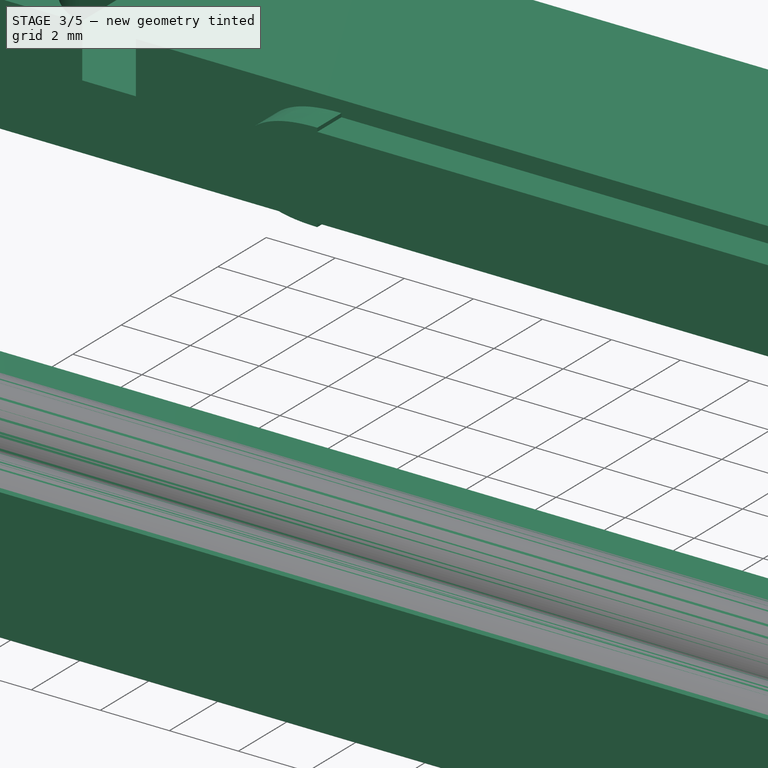
[diagram: stage 3 of 5 — iso view after this stage's code; geometry added in this stage tinted green]
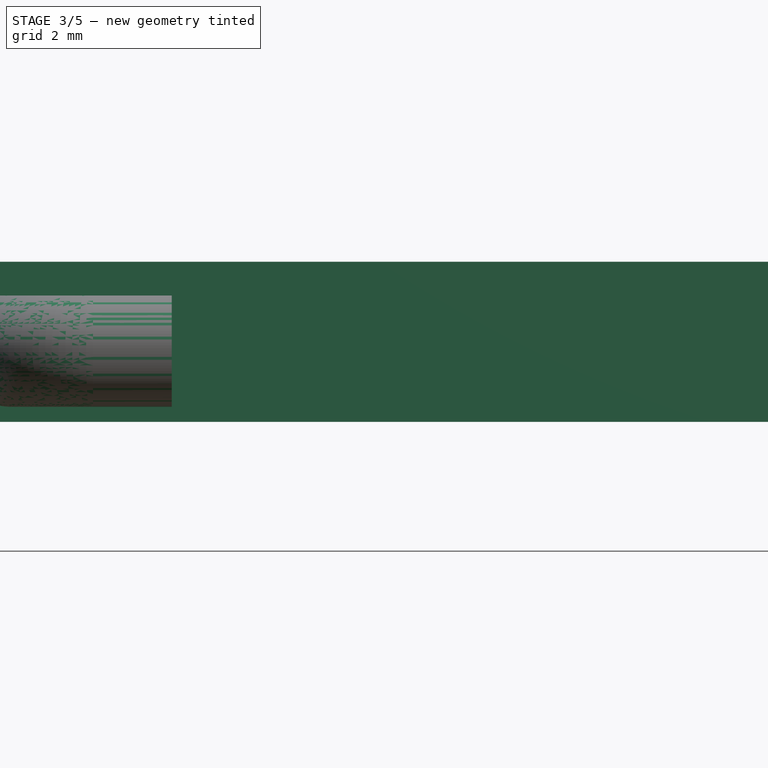
[diagram: stage 3 of 5 — front view after this stage's code; geometry added in this stage tinted green]
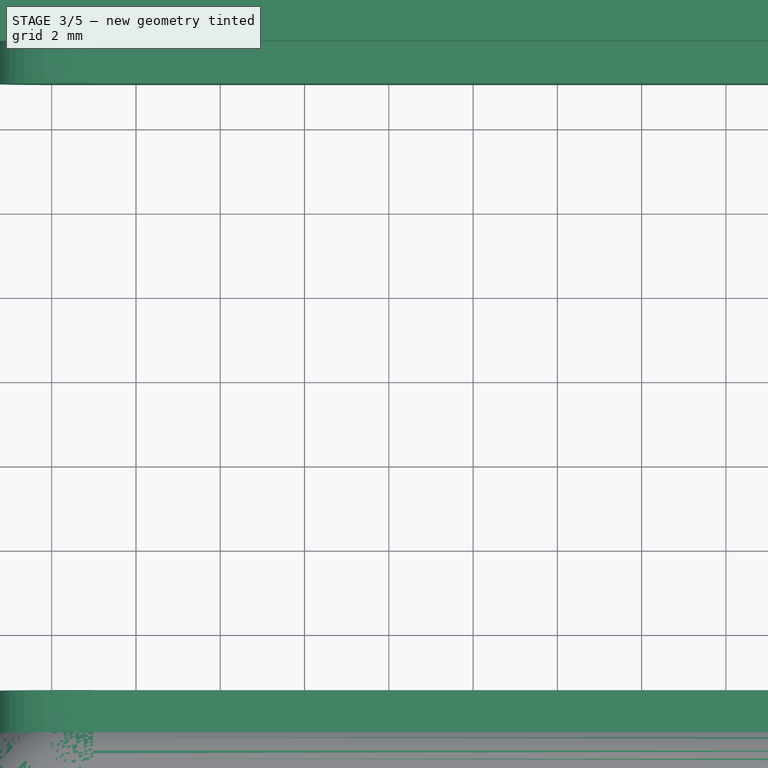
[diagram: stage 3 of 5 — top view after this stage's code; geometry added in this stage tinted green]
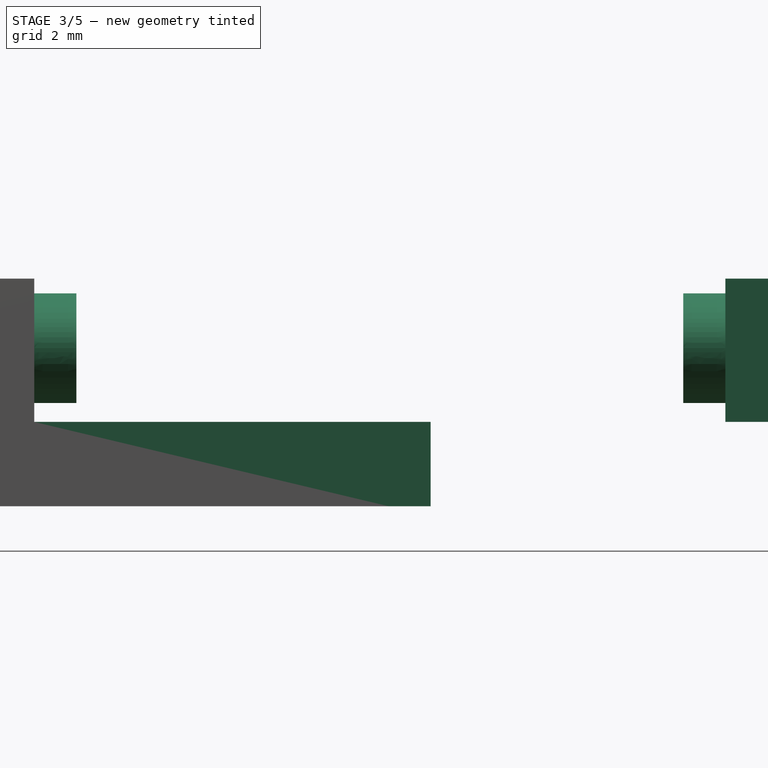
[diagram: stage 3 of 5 — right view after this stage's code; geometry added in this stage tinted green]
FEATURE [Sketcher::SketchObject] Sketch006028
  ArcFitTolerance = 1e-06
  AttachmentSupport = -> [DatumPlane003]
  ExternalBSplineMaxDegree = 5
  ExternalBSplineTolerance = 0.0001
  ExternalGeometry = -> [Pocket010]
  FullyConstrained = true
  InternalTolerance = 1e-06
  MakeInternals = false
  MapMode = 5
  Placement = pos=(-7.03848,71,0) rot=(1,0,0;1.5708rad)
  Support = -> [DatumPlane003]
  TreeRank = 358
  sketch-geometry (3):
    g0: LineSegment StartX=3.6e-15 StartY=-0.4 StartZ=0 EndX=-5 EndY=-3 EndZ=0
    g1: LineSegment StartX=3.6e-15 StartY=-0.4 StartZ=0 EndX=0 EndY=-3 EndZ=0
    g2: LineSegment StartX=0 StartY=-3 StartZ=0 EndX=-5 EndY=-3 EndZ=0
  constraints (9):
    c: PointOnObject(g0,g-3)
    c: DistanceY(g0,g-3) = 0.4
    c: DistanceY(g0,g-3) = 3
    c: DistanceX(g0,g0) = 5
    c: Coincident(g1,g0)
    c: PointOnObject(g1,g-2)
    c: Coincident(g2,g1)
    c: Coincident(g2,g0)
    c: Horizontal(g2)
FEATURE [PartDesign::Pocket] Pocket012  label="Inner Jaw"
  AddSubType = 1
  AutoTaperInnerAngle = true
  BaseFeature = -> Pocket010
  CheckUpToFaceLimits = true
  ClaimChildren = false
  Fit = 0
  FitJoin = 0
  InnerFit = 0
  InnerFitJoin = 0
  Length = 12
  Length2 = 100
  Linearize = true
  NewSolid = false
  Profile = -> Sketch006028
  Refine = true
  Reversed = true
  Suppress = false
  TaperInnerAngle = 0
  TaperInnerAngleRev = 0
  TreeRank = 359
  Type = 0
  _ProfileBasedVersion = 1
  _Version = 1
FEATURE [PartDesign::Chamfer] Chamfer007  label="Base"
  AddSubType = 0
  Angle = 45
  Base = -> Pocket012 [Edge137]
  BaseFeature = -> Pocket012
  ChamferType = 0
  FlipDirection = false
  NewSolid = false
  Refine = true
  Size = 0.99
  Size2 = 1
  SupportTransform = false
  Suppress = false
  TreeRank = 380
  _Siblings = -> [Pocket012,Pocket010,Pad010,Chamfer004,Pad008,Chamfer002,Pad006,Boolean002,Hole,Pocket005,Pipe002,Pipe001,Boolean001]
FEATURE [Sketcher::SketchObject] Sketch006022
  ArcFitTolerance = 1e-06
  AttachmentSupport = -> [DatumPlane001]
  ExternalBSplineMaxDegree = 5
  ExternalBSplineTolerance = 0.0001
  ExternalGeometry = -> [Chamfer007]
  FullyConstrained = false
  InternalTolerance = 1e-06
  MakeInternals = false
  MapMode = 5
  Placement = pos=(10.9812,35.1094,1.75) rot=(0.57735,0.57735,0.57735;2.0944rad)
  Support = -> [DatumPlane001]
  TreeRank = 333
  sketch-geometry (5):
    g0: LineSegment StartX=23.0906 StartY=3.59583 StartZ=0 EndX=24.0906 EndY=2.59583 EndZ=0
    g1: LineSegment StartX=23.0906 StartY=3.59583 StartZ=0 EndX=16.8906 EndY=2.05 EndZ=0
    g2: LineSegment StartX=24.0906 StartY=1.65 StartZ=0 EndX=24.0906 EndY=2.59583 EndZ=0
    g3: LineSegment StartX=16.8906 StartY=2.05 StartZ=0 EndX=16.8906 EndY=1.65 EndZ=0
    g4: LineSegment StartX=16.8906 StartY=1.65 StartZ=0 EndX=24.0906 EndY=1.65 EndZ=0
  constraints (11):
    c: Angle(g0,g-1) = 0.785398
    c: Coincident(g1,g0)
    c: Coincident(g2,g0)
    c: Angle(g0,g2) = 2.35619
    c: DistanceY(g0,g0) = 1
    c: Coincident(g3,g1)
    c: Horizontal(g1,g-4)
    c: Vertical(g3)
    c: Coincident(g4,g2)
    c: Horizontal(g4)
    c: PointOnObject(g4,g3)
FEATURE [PartDesign::Plane] DatumPlane004
  AttachmentSupport = -> [Chamfer007]
  Length = 10
  MapMode = 5
  MinimumLength = 10
  MinimumWidth = 10
  ResizeMode = 0
  Support = -> [Chamfer007]
  TreeRank = 531
  Width = 10
FEATURE [Sketcher::SketchObject] Sketch006034
  ArcFitTolerance = 1e-06
  AttachmentSupport = -> [Chamfer007]
  ExternalBSplineMaxDegree = 5
  ExternalBSplineTolerance = 0.0001
  FullyConstrained = true
  InternalTolerance = 1e-06
  MakeInternals = false
  MapMode = 5
  Placement = pos=(0,35.6,0) rot=(0,0.707107,0.707107;3.14159rad)
  Support = -> [Chamfer007]
  TreeRank = 581
FEATURE [PartDesign::Plane] DatumPlane005
  AttachmentOffset = pos=(0,0,8.2) rot=(0,0,1;0rad)
  AttachmentSupport = -> [Chamfer007]
  Length = 49.8
  MapMode = 5
  MinimumLength = 10
  MinimumWidth = 10
  Placement = pos=(0,43.8,-1.8e-15) rot=(0,0.707107,0.707107;3.14159rad)
  ResizeMode = 0
  Support = -> [Chamfer007]
  TreeRank = 545
  Width = 10
FEATURE [Part::SubShapeBinder] Import011  label="Import011(Base)"
  BindCopyOnChange = 0
  BindMode = 2
  ClaimChildren = false
  Context = -> Body003 [Import011.]
  EdgeTolerance = 1e-06
  FillStyle = 0
  Fuse = false
  MakeFace = false
  MergeEdges = true
  OffsetFill = false
  OffsetIntersection = false
  OffsetJoinType = 0
  OffsetOpenResult = false
  Outline = false
  PartialLoad = false
  Relative = true
  SplitEdges = false
  TightBound = false
  TreeRank = 613
  _Version = 8
FEATURE [Part::SubShapeBinder] Import012  label="Import012(Sketch001)"
  BindCopyOnChange = 0
  BindMode = 2
  ClaimChildren = false
  Context = -> Body003 [Import012.]
  EdgeTolerance = 1e-06
  FillStyle = 0
  Fuse = false
  MakeFace = false
  MergeEdges = true
  OffsetFill = false
  OffsetIntersection = false
  OffsetJoinType = 0
  OffsetOpenResult = false
  Outline = false
  PartialLoad = false
  Relative = true
  SplitEdges = false
  TightBound = false
  TreeRank = 614
  _Version = 8
FEATURE [Sketcher::SketchObject] Sketch006035
  ArcFitTolerance = 1e-06
  AttachmentSupport = -> [Chamfer007]
  ExternalBSplineMaxDegree = 5
  ExternalBSplineTolerance = 0.0001
  ExternalGeometry = -> [Import011,Import012]
  FullyConstrained = true
  InternalTolerance = 1e-06
  MakeInternals = false
  MapMode = 5
  Placement = pos=(0,35.6,0) rot=(0,0.707107,0.707107;3.14159rad)
  Support = -> [Chamfer007]
  TreeRank = 612
  sketch-geometry (4):
    g0: LineSegment StartX=-45.8 StartY=3.8 StartZ=0 EndX=-0.8 EndY=3.8 EndZ=0
    g1: LineSegment StartX=-0.8 StartY=3.8 StartZ=0 EndX=-0.8 EndY=0 EndZ=0
    g2: LineSegment StartX=-0.8 StartY=1e-16 StartZ=0 EndX=-45.8 EndY=1e-16 EndZ=0
    g3: LineSegment StartX=-45.8 StartY=1e-16 StartZ=0 EndX=-45.8 EndY=3.8 EndZ=0
  constraints (10):
    c: Coincident(g0,g1)
    c: Coincident(g1,g2)
    c: Coincident(g2,g3)
    c: Coincident(g3,g0)
    c: Horizontal(g0)
    c: Horizontal(g2)
    c: Vertical(g1)
    c: Vertical(g3)
    c: Coincident(g0,g-3)
    c: Coincident(g1,g-4)
FEATURE [PartDesign::Pad] Pad013
  AddSubType = 0
  AlongSketchNormal = false
  AutoTaperInnerAngle = true
  CheckUpToFaceLimits = true
  ClaimChildren = false
  Direction = (0,1,-2e-16)
  Fit = 0
  FitJoin = 0
  InnerFit = 0
  InnerFitJoin = 0
  Length = 7
  Length2 = 100
  Linearize = true
  NewSolid = false
  Profile = -> Sketch006035
  Refine = true
  Reversed = true
  Suppress = false
  TaperInnerAngle = 0
  TaperInnerAngleRev = 0
  TreeRank = 615
  Type = 0
  _ProfileBasedVersion = 1
FEATURE [PartDesign::SubShapeBinder] Reference011  label="Reference011(Base)"
  BindCopyOnChange = 0
  BindMode = 2
  ClaimChildren = false
  EdgeTolerance = 1e-06
  FillStyle = 0
  Fuse = true
  MakeFace = true
  MergeEdges = true
  OffsetFill = false
  OffsetIntersection = false
  OffsetJoinType = 0
  OffsetOpenResult = false
  Outline = false
  PartialLoad = false
  Relative = true
  SplitEdges = false
  TightBound = false
  TreeRank = 617
  _Version = 8
FEATURE [PartDesign::Boolean] Boolean004
  BaseFeature = -> Pad013
  ClaimAllChildren = false
  ExportMode = 0
  Group = -> [Reference011]
  NewSolid = false
  Refine = true
  Suppress = false
  TreeRank = 616
  Type = 1
  _ExportChildren = -> [Reference011]
  _GroupVersion = 1
FEATURE [Sketcher::SketchObject] Sketch006011
  ArcFitTolerance = 1e-06
  AttachmentSupport = -> [Split]
  ExternalBSplineMaxDegree = 5
  ExternalBSplineTolerance = 0.0001
  ExternalGeometry = -> [Hole]
  FullyConstrained = false
  InternalTolerance = 1e-06
  MakeInternals = false
  MapMode = 5
  Placement = pos=(0,0,3.4) rot=(0,0,1;0rad)
  Support = -> [Split]
  TreeRank = 195
  sketch-geometry (14):
    g0: Circle [constr] CenterX=4.25 CenterY=55.3859 CenterZ=0 NormalX=0 NormalY=0 NormalZ=1 AngleXU=0 Radius=2.5
    g1: Circle [constr] CenterX=46.35 CenterY=55.3859 CenterZ=0 NormalX=0 NormalY=0 NormalZ=1 AngleXU=0 Radius=2.5
    g2: GeomPoint [constr] X=4.25 Y=54.5859 Z=0
    g3: GeomPoint [constr] X=4.25 Y=56.1859 Z=0
    g4: ArcOfCircle CenterX=4.25 CenterY=56.1859 CenterZ=0 NormalX=0 NormalY=0 NormalZ=1 AngleXU=0 Radius=2.5 StartAngle=6.28319 EndAngle=9.42478
    g5: ArcOfCircle CenterX=4.25 CenterY=54.5859 CenterZ=0 NormalX=0 NormalY=0 NormalZ=1 AngleXU=0 Radius=2.5 StartAngle=3.14159 EndAngle=6.28319
    g6: GeomPoint [constr] X=46.35 Y=56.1859 Z=0
    g7: GeomPoint [constr] X=46.35 Y=54.5859 Z=0
    g8: ArcOfCircle CenterX=46.35 CenterY=56.1859 CenterZ=0 NormalX=0 NormalY=0 NormalZ=1 AngleXU=0 Radius=2.5 StartAngle=1.1e-15 EndAngle=3.14159
    g9: ArcOfCircle CenterX=46.35 CenterY=54.5859 CenterZ=0 NormalX=0 NormalY=0 NormalZ=1 AngleXU=0 Radius=2.5 StartAngle=3.14159 EndAngle=6.28319
    g10: LineSegment StartX=1.75 StartY=54.5859 StartZ=0 EndX=1.75 EndY=56.1859 EndZ=0
    g11: LineSegment StartX=6.75 StartY=54.5859 StartZ=0 EndX=6.75 EndY=56.1859 EndZ=0
    g12: LineSegment StartX=43.85 StartY=56.1859 StartZ=0 EndX=43.85 EndY=54.5859 EndZ=0
    g13: LineSegment StartX=48.85 StartY=54.5859 StartZ=0 EndX=48.85 EndY=56.1859 EndZ=0
  constraints (32):
    c: Coincident(g0,g-4)
    c: Coincident(g1,g-3)
    c: Diameter(g1) = 5
    c: Equal(g1,g0)
    c: Symmetric(g3,g2,g0)
    c: Vertical(g3,g2)
    c: Coincident(g4,g3)
    c: Coincident(g5,g2)
    c: Equal(g5,g0)
    c: Equal(g0,g4)
    c: Vertical(g7,g1)
    c: Vertical(g1,g6)
    c: Horizontal(g6,g4)
    c: Horizontal(g5,g7)
    c: Coincident(g9,g7)
    c: Equal(g1,g9)
    c: Equal(g1,g8)
    c: DistanceY(g5,g4) = 1.6
    c: Coincident(g8,g6)
    c: Tangent(g10,g0)
    c: Vertical(g11)
    c: Coincident(g4,g10)
    c: Coincident(g5,g10)
    c: Coincident(g4,g11)
    c: Tangent(g5,g11) = -1.5708
    c: Tangent(g8,g13) = -1.5708
    c: Coincident(g9,g13)
    c: Coincident(g9,g12)
    c: Coincident(g8,g12)
    c: Horizontal(g9,g9)
    c: Horizontal(g9,g9)
    c: Vertical(g12)
FEATURE [PartDesign::Pocket] Pocket006
  AddSubType = 1
  AutoTaperInnerAngle = true
  BaseFeature = -> Split
  CheckUpToFaceLimits = true
  ClaimChildren = false
  Fit = 0.2
  FitJoin = 0
  InnerFit = 0
  InnerFitJoin = 0
  Length = 1.5
  Length2 = 1
  Linearize = true
  NewSolid = false
  Profile = -> Sketch006011
  Refine = true
  Suppress = false
  TaperInnerAngle = 0
  TaperInnerAngleRev = 0
  TreeRank = 201
  Type = 4
  _ProfileBasedVersion = 1
  _Version = 1
FEATURE [PartDesign::Body] Body003
  AutoGroupSolids = true
  ClaimAllChildren = false
  ExportMode = 0
  Group = -> [Sketch006035,Import011,Import012,Binder,Split001_i0,Split001_i1,Pad013,Boolean004,Split001,Pad014,DatumPlane006,Mirrored,Split001_i2]
  Origin = -> Origin003
  Tip = -> Mirrored
  TreeRank = 611
  _ExportChildren = -> [Import011,Import012,DatumPlane006,Mirrored]
  _GroupVersion = 1
FEATURE [PartDesign::Split] Split001
  BaseFeature = -> Boolean004
  Fragment = false
  Mode = 0
  NewSolid = false
  Solids = -> [Split001_i0,Split001_i1,Split001_i2]
  Suppress = false
  Tolerance = 0
  Tools = -> [Binder]
  TreeRank = 622
  _Version = 1
FEATURE [PartDesign::Solid] Split001_i0
  Active = false
  Parent = -> Split001
  TreeRank = 623
FEATURE [PartDesign::Solid] Split001_i1
  Active = true
  Parent = -> Split001
  TreeRank = 624
FEATURE [PartDesign::Pad] Pad014
  AddSubType = 0
  AlongSketchNormal = false
  AutoTaperInnerAngle = true
  BaseFeature = -> Split001
  CheckUpToFaceLimits = true
  ClaimChildren = false
  Direction = (0,1,0)
  Fit = 0
  FitJoin = 0
  InnerFit = 0
  InnerFitJoin = 0
  Length = 1
  Length2 = 100
  Linearize = true
  NewSolid = false
  Profile = -> Split001 [Face1]
  Refine = true
  Suppress = false
  TaperInnerAngle = 0
  TaperInnerAngleRev = 0
  TreeRank = 625
  Type = 0
  _ProfileBasedVersion = 1
FEATURE [PartDesign::Mirrored] Mirrored
  AddSubType = 0
  BaseFeature = -> Pad014
  CopyShape = false
  MirrorPlane = -> DatumPlane006
  NewSolid = false
  OriginalSubs = -> [Pad014,Split001]
  Originals = -> [Pad014,Split001]
  ParallelTransform = true
  Refine = true
  SubTransform = true
  Suppress = false
  TreeRank = 627
  _Siblings = -> [Pad014,Split001,Boolean004,Pad013]
  _Version = 3
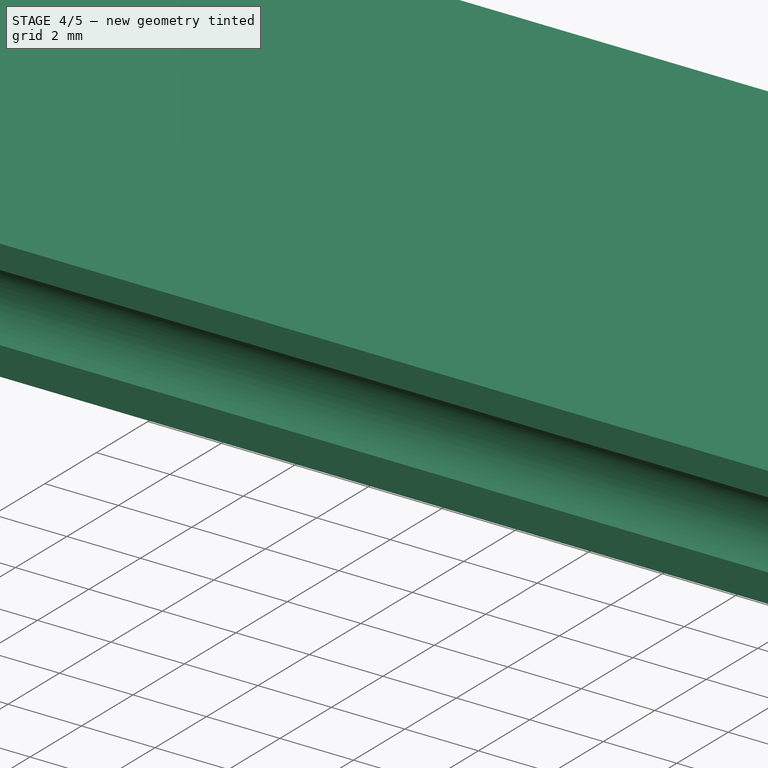
[diagram: stage 4 of 5 — iso view after this stage's code; geometry added in this stage tinted green]
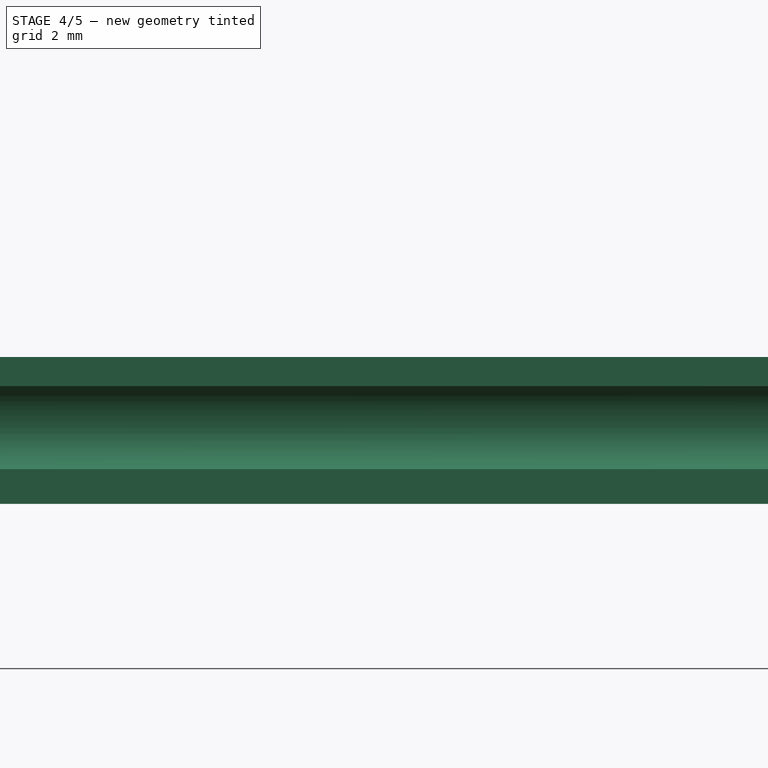
[diagram: stage 4 of 5 — front view after this stage's code; geometry added in this stage tinted green]
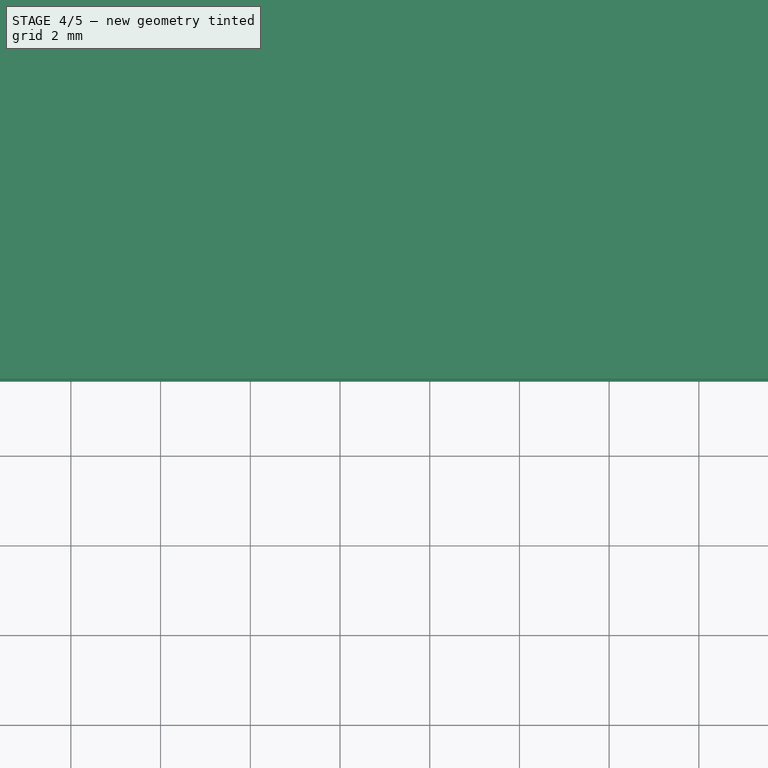
[diagram: stage 4 of 5 — top view after this stage's code; geometry added in this stage tinted green]
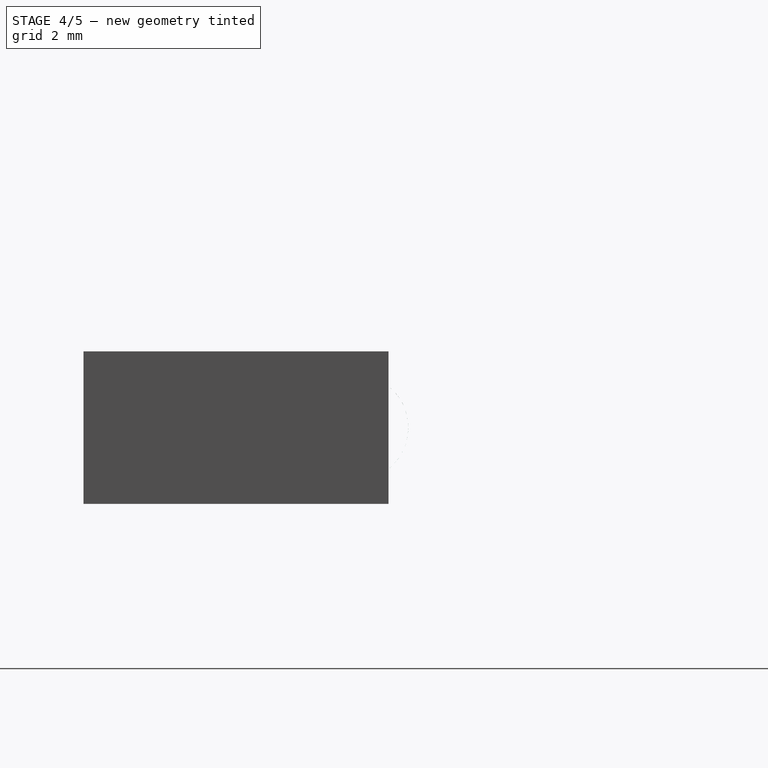
[diagram: stage 4 of 5 — right view after this stage's code; geometry added in this stage tinted green]
FEATURE [PartDesign::SubShapeBinder] Reference  label="Reference(Pad004)"
  BindCopyOnChange = 0
  BindMode = 0
  ClaimChildren = false
  EdgeTolerance = 1e-06
  FillStyle = 0
  Fuse = true
  MakeFace = true
  MergeEdges = true
  OffsetFill = false
  OffsetIntersection = false
  OffsetJoinType = 0
  OffsetOpenResult = false
  Outline = false
  PartialLoad = false
  Relative = true
  SplitEdges = false
  Support = -> [Pad004]
  TightBound = false
  TreeRank = 277
  _Version = 8
FEATURE [PartDesign::SubShapeBinder] Reference005  label="Reference005(Pad002)"
  BindCopyOnChange = 0
  BindMode = 0
  ClaimChildren = false
  EdgeTolerance = 1e-06
  FillStyle = 0
  Fuse = true
  MakeFace = true
  MergeEdges = true
  OffsetFill = false
  OffsetIntersection = false
  OffsetJoinType = 0
  OffsetOpenResult = false
  Outline = false
  PartialLoad = false
  Relative = true
  SplitEdges = false
  Support = -> [Pad002]
  TightBound = false
  TreeRank = 278
  _Version = 8
FEATURE [PartDesign::Boolean] Boolean
  ClaimAllChildren = false
  ExportMode = 0
  Group = -> [Reference,Reference005]
  NewSolid = true
  Refine = true
  Suppress = false
  TreeRank = 84
  Type = 1
  _ExportChildren = -> [Reference,Reference005]
  _GroupVersion = 1
FEATURE [Sketcher::SketchObject] Sketch006009  label="Square Nuts"
  ArcFitTolerance = 1e-06
  AttachmentSupport = -> [Boolean001]
  ExternalBSplineMaxDegree = 5
  ExternalBSplineTolerance = 0.0001
  ExternalGeometry = -> [Import007]
  FullyConstrained = true
  InternalTolerance = 1e-06
  MakeInternals = false
  MapMode = 5
  Placement = pos=(0,0,-2) rot=(1,0,0;3.14159rad)
  Support = -> [Boolean001]
  TreeRank = 303
  sketch-geometry (13):
    g0: LineSegment StartX=43.85 StartY=-57.8859 StartZ=0 EndX=43.85 EndY=-52.8859 EndZ=0
    g1: LineSegment StartX=43.85 StartY=-52.8859 StartZ=0 EndX=48.85 EndY=-52.8859 EndZ=0
    g2: LineSegment StartX=48.85 StartY=-52.8859 StartZ=0 EndX=48.85 EndY=-57.8859 EndZ=0
    g3: LineSegment StartX=48.85 StartY=-57.8859 StartZ=0 EndX=43.85 EndY=-57.8859 EndZ=0
    g4: GeomPoint [constr] X=46.35 Y=-55.3859 Z=0
    g5: LineSegment StartX=1.75 StartY=-57.8859 StartZ=0 EndX=1.75 EndY=-52.8859 EndZ=0
    g6: LineSegment StartX=1.75 StartY=-52.8859 StartZ=0 EndX=6.75 EndY=-52.8859 EndZ=0
    g7: LineSegment StartX=6.75 StartY=-52.8859 StartZ=0 EndX=6.75 EndY=-57.8859 EndZ=0
    g8: LineSegment StartX=6.75 StartY=-57.8859 StartZ=0 EndX=1.75 EndY=-57.8859 EndZ=0
    g9: GeomPoint [constr] X=4.25 Y=-55.3859 Z=0
    g10: LineSegment [constr] StartX=42.9 StartY=-59.2125 StartZ=0 EndX=42.9 EndY=-51.5594 EndZ=0
    g11: LineSegment [constr] StartX=7.7 StartY=-51.5594 StartZ=0 EndX=7.7 EndY=-59.2125 EndZ=0
    g12: GeomPoint [constr] X=46.35 Y=-55.3859 Z=0
  constraints (33):
    c: Coincident(g0,g1)
    c: Coincident(g1,g2)
    c: Coincident(g2,g3)
    c: Coincident(g3,g0)
    c: Horizontal(g1)
    c: Horizontal(g3)
    c: Vertical(g0)
    c: Vertical(g2)
    c: Symmetric(g1,g0,g4)
    c: Coincident(g5,g6)
    c: Coincident(g6,g7)
    c: Coincident(g7,g8)
    c: Coincident(g8,g5)
    c: Horizontal(g6)
    c: Horizontal(g8)
    c: Vertical(g5)
    c: Vertical(g7)
    c: Symmetric(g6,g5,g9)
    c: Distance(g7) = 5
    c: Distance(g2) = 5
    c: Equal(g2,g1)
    c: Equal(g6,g7)
    c: PointOnObject(g10,g-7)
    c: PointOnObject(g10,g-10)
    c: Vertical(g10)
    c: Tangent(g10,g-5)
    c: PointOnObject(g11,g-9)
    c: PointOnObject(g11,g-7)
    c: Vertical(g11)
    c: Tangent(g11,g-3)
    c: Symmetric(g10,g-7,g12)
    c: Symmetric(g0,g2,g12)
    c: Symmetric(g-9,g11,g9)
FEATURE [PartDesign::SubShapeBinder] Reference008  label="Reference008(Screw Holes)"
  BindCopyOnChange = 0
  BindMode = 0
  ClaimChildren = false
  Context = -> Body001 [Reference008.]
  EdgeTolerance = 1e-06
  FillStyle = 0
  Fuse = false
  MakeFace = true
  MergeEdges = true
  OffsetFill = false
  OffsetIntersection = false
  OffsetJoinType = 0
  OffsetOpenResult = false
  Outline = false
  PartialLoad = false
  Relative = true
  SplitEdges = false
  Support = -> [Hole]
  TightBound = false
  TreeRank = 300
  _Version = 8
FEATURE [PartDesign::SubShapeBinder] Reference009  label="Reference009(Pad005)"
  BindCopyOnChange = 0
  BindMode = 0
  ClaimChildren = false
  EdgeTolerance = 1e-06
  FillStyle = 0
  Fuse = true
  MakeFace = true
  MergeEdges = true
  OffsetFill = false
  OffsetIntersection = false
  OffsetJoinType = 0
  OffsetOpenResult = false
  Outline = false
  PartialLoad = false
  Relative = true
  SplitEdges = false
  Support = -> [Pad005]
  TightBound = false
  TreeRank = 301
  _Version = 8
FEATURE [Sketcher::SketchObject] Sketch006019
  ArcFitTolerance = 1e-06
  AttachmentSupport = -> [Pad004]
  ExternalBSplineMaxDegree = 5
  ExternalBSplineTolerance = 0.0001
  FullyConstrained = false
  InternalTolerance = 1e-06
  MakeInternals = false
  MapMode = 5
  Placement = pos=(0,0,3.4) rot=(0,0,1;0rad)
  Support = -> [Pad004]
  TreeRank = 299
  sketch-geometry (4):
    g0: LineSegment StartX=45.8 StartY=28.8 StartZ=0 EndX=0.8 EndY=28.8 EndZ=0
    g1: LineSegment StartX=0.8 StartY=28.8 StartZ=0 EndX=0.8 EndY=35.6 EndZ=0
    g2: LineSegment StartX=0.8 StartY=35.6 StartZ=0 EndX=45.8 EndY=35.6 EndZ=0
    g3: LineSegment StartX=45.8 StartY=35.6 StartZ=0 EndX=45.8 EndY=28.8 EndZ=0
  constraints (8):
    c: Coincident(g0,g1)
    c: Coincident(g1,g2)
    c: Coincident(g2,g3)
    c: Coincident(g3,g0)
    c: Horizontal(g0)
    c: Horizontal(g2)
    c: Vertical(g1)
    c: Vertical(g3)
FEATURE [PartDesign::Plane] DatumPlane002
  AttachmentOffset = pos=(0,0,220) rot=(0,0,1;0rad)
  AttachmentSupport = -> [YZ_Plane001]
  Length = 10
  MapMode = 5
  MinimumLength = 10
  MinimumWidth = 10
  Placement = pos=(220,-4.88e-14,4.88e-14) rot=(0.57735,0.57735,0.57735;2.0944rad)
  ResizeMode = 0
  Support = -> [YZ_Plane001]
  TreeRank = 343
  Width = 10
FEATURE [Sketcher::SketchObject] Sketch006025
  ArcFitTolerance = 1e-06
  AttachmentSupport = -> [DatumPlane002]
  ExternalBSplineMaxDegree = 5
  ExternalBSplineTolerance = 0.0001
  FullyConstrained = false
  InternalTolerance = 1e-06
  MakeInternals = false
  MapMode = 5
  Placement = pos=(220,-4.88e-14,4.88e-14) rot=(0.57735,0.57735,0.57735;2.0944rad)
  Support = -> [DatumPlane002]
  TreeRank = 350
  sketch-geometry (5):
    g0: GeomPoint [constr] X=43.8 Y=-2.49e-14 Z=0
    g1: LineSegment StartX=41.8 StartY=1 StartZ=0 EndX=45.8 EndY=1 EndZ=0
    g2: LineSegment StartX=45.8 StartY=1 StartZ=0 EndX=45.8 EndY=-2.5e-14 EndZ=0
    g3: LineSegment StartX=45.8 StartY=-2.5e-14 StartZ=0 EndX=41.8 EndY=-2.5e-14 EndZ=0
    g4: LineSegment StartX=41.8 StartY=-2.5e-14 StartZ=0 EndX=41.8 EndY=1 EndZ=0
  constraints (11):
    c: Coincident(g1,g2)
    c: Coincident(g2,g3)
    c: Coincident(g3,g4)
    c: Coincident(g4,g1)
    c: Horizontal(g1)
    c: Horizontal(g3)
    c: Vertical(g2)
    c: Vertical(g4)
    c: Symmetric(g3,g3,g0)
    c: Distance(g1) = 4
    c: Distance(g2) = 1
FEATURE [Part::SubShapeBinder] Import010  label="Import010(Pocket013)"
  BindCopyOnChange = 0
  BindMode = 0
  ClaimChildren = false
  Context = -> Body002 [Import010.]
  EdgeTolerance = 1e-06
  FillStyle = 0
  Fuse = false
  MakeFace = false
  MergeEdges = true
  OffsetFill = false
  OffsetIntersection = false
  OffsetJoinType = 0
  OffsetOpenResult = false
  Outline = false
  PartialLoad = false
  Relative = true
  SplitEdges = false
  Support = -> [Body[Pocket013.]]
  TightBound = false
  TreeRank = 375
  _Version = 8
FEATURE [Sketcher::SketchObject] Sketch
  ArcFitTolerance = 1e-06
  AttachmentSupport = -> [XY_Plane]
  ExternalBSplineMaxDegree = 5
  ExternalBSplineTolerance = 0.0001
  FullyConstrained = true
  InternalTolerance = 1e-06
  MakeInternals = false
  MapMode = 5
  Support = -> [XY_Plane]
  TreeRank = 436
  sketch-geometry (19):
    g0: LineSegment StartX=0 StartY=0 StartZ=0 EndX=0 EndY=28 EndZ=0
    g1: LineSegment StartX=0 StartY=0 StartZ=0 EndX=-6 EndY=6 EndZ=0
    g2: LineSegment StartX=-6 StartY=6 StartZ=0 EndX=-14.0385 EndY=36 EndZ=0
    g3: ArcOfCircle CenterX=0 CenterY=28.8 CenterZ=0 NormalX=0 NormalY=0 NormalZ=1 AngleXU=0 Radius=0.8 StartAngle=3.14159 EndAngle=4.71239
    g4: LineSegment StartX=-0.8 StartY=28.8 StartZ=0 EndX=-0.8 EndY=35.6 EndZ=0
    g5: LineSegment StartX=-14.0385 StartY=36 StartZ=0 EndX=-14.0385 EndY=52 EndZ=0
    g6: LineSegment [constr] StartX=-14.0385 StartY=37.6 StartZ=0 EndX=220 EndY=37.6 EndZ=0
    g7: LineSegment [constr] StartX=-14.0385 StartY=50.4 StartZ=0 EndX=220 EndY=50.4 EndZ=0
    g8: GeomPoint [constr] X=-14.0385 Y=44 Z=0
    g9: LineSegment StartX=-0.8 StartY=35.6 StartZ=0 EndX=220 EndY=35.6 EndZ=0
    g10: LineSegment StartX=-7.03848 StartY=61 StartZ=0 EndX=-7.03848 EndY=71 EndZ=0
    g11: ArcOfCircle CenterX=-7.03848 CenterY=60.2 CenterZ=0 NormalX=0 NormalY=0 NormalZ=1 AngleXU=0 Radius=0.8 StartAngle=1.5e-15 EndAngle=1.5708
    g12: LineSegment StartX=-6.23848 StartY=60.2 StartZ=0 EndX=-6.23848 EndY=56 EndZ=0
    g13: LineSegment StartX=-7.03848 StartY=71 StartZ=0 EndX=-3.50294 EndY=67.4645 EndZ=0
    g14: LineSegment StartX=0.640749 StartY=52 StartZ=0 EndX=220 EndY=52 EndZ=0
    g15: LineSegment StartX=220 StartY=52 StartZ=0 EndX=220 EndY=35.6 EndZ=0
    g16: LineSegment StartX=-14.0385 StartY=52 StartZ=0 EndX=-14.0385 EndY=56 EndZ=0
    g17: LineSegment StartX=-14.0385 StartY=56 StartZ=0 EndX=-6.23848 EndY=56 EndZ=0
    g18: LineSegment StartX=-3.50294 StartY=67.4645 StartZ=0 EndX=0.640749 EndY=52 EndZ=0
  constraints (57):
    c: Coincident(g0,g-1)
    c: PointOnObject(g0,g-2)
    c: DistanceY(g0,g0) = 28
    c: Coincident(g1,g0)
    c: Angle(g0,g1) = 0.785398
    c: DistanceY(g0,g1) = 6
    c: Coincident(g2,g1)
    c: DistanceY(g0,g2) = 36
    c: Angle(g0,g2) = 0.261799
    c: PointOnObject(g3,g-2)
    c: Coincident(g3,g0)
    c: Vertical(g4)
    c: Tangent(g4,g3) = 1.5708
    c: Radius(g3) = 0.8
    c: Coincident(g5,g2)
    c: Vertical(g5)
    c: DistanceY(g5,g5) = 16
    c: PointOnObject(g6,g5)
    c: Horizontal(g6)
    c: Horizontal(g7)
    c: Symmetric(g5,g2,g8)
    c: Symmetric(g7,g6,g8)
    c: DistanceY(g7,g5) = 1.6
    c: Distance(g4,g6) = 2
    c: Coincident(g9,g4)
    c: Horizontal(g9)
    c: Vertical(g10)
    c: Coincident(g11,g10)
    c: Coincident(g12,g11)
    c: Vertical(g12)
    c: Radius(g11) = 0.8
    c: Vertical(g11,g10)
    c: Horizontal(g11,g11)
    c: DistanceX(g5,g10) = 7
    c: Coincident(g13,g10)
    c: Angle(g10,g13) = 0.785398
    c: DistanceY(g10,g10) = 10
    c: Vertical(g7,g14)
    c: Vertical(g7,g9)
    c: Vertical(g9,g6)
    c: Distance(g13) = 5
    c: Coincident(g15,g14)
    c: Coincident(g15,g9)
    c: DistanceX(g0,g9) = 220
    c: Horizontal(g14)
    c: Horizontal(g5,g14)
    c: Coincident(g16,g5)
    c: Vertical(g16)
    c: Coincident(g17,g16)
    c: Coincident(g17,g12)
    c: Horizontal(g17)
    c: DistanceY(g16,g16) = 4
    c: DistanceY(g16,g10) = 5
    c: Coincident(g18,g13)
    c: Angle(g10,g18) = 0.261799
    c: PointOnObject(g14,g18)
    c: PointOnObject(g18,g14)
FEATURE [Part::SubShapeBinder] Import004  label="Import004(Pad)"
  BindCopyOnChange = 0
  BindMode = 0
  ClaimChildren = false
  Context = -> Body [Import004.]
  EdgeTolerance = 1e-06
  FillStyle = 0
  Fuse = false
  MakeFace = false
  MergeEdges = true
  OffsetFill = false
  OffsetIntersection = false
  OffsetJoinType = 0
  OffsetOpenResult = false
  Outline = false
  PartialLoad = false
  Relative = true
  SplitEdges = false
  Support = -> [Body001[Pad.]]
  TightBound = false
  TreeRank = 440
  _Version = 8
FEATURE [Part::SubShapeBinder] Import005  label="Import005(Pocket)"
  BindCopyOnChange = 0
  BindMode = 0
  ClaimChildren = false
  Context = -> Body [Import005.]
  EdgeTolerance = 1e-06
  FillStyle = 0
  Fuse = false
  MakeFace = false
  MergeEdges = true
  OffsetFill = false
  OffsetIntersection = false
  OffsetJoinType = 0
  OffsetOpenResult = false
  Outline = false
  PartialLoad = false
  Relative = true
  SplitEdges = false
  Support = -> [Body001[Pocket.]]
  TightBound = false
  TreeRank = 441
  _Version = 8
FEATURE [Part::SubShapeBinder] Import  label="Import(Boolean002)"
  BindCopyOnChange = 0
  BindMode = 0
  ClaimChildren = false
  Context = -> Body [Import.]
  EdgeTolerance = 1e-06
  FillStyle = 0
  Fuse = false
  MakeFace = false
  MergeEdges = true
  OffsetFill = false
  OffsetIntersection = false
  OffsetJoinType = 0
  OffsetOpenResult = false
  Outline = false
  PartialLoad = false
  Relative = true
  SplitEdges = false
  Support = -> [Body001[Boolean002.]]
  TightBound = false
  TreeRank = 442
  _Version = 8
FEATURE [Part::SubShapeBinder] Import009  label="Import009(Chamfer004)"
  BindCopyOnChange = 0
  BindMode = 0
  ClaimChildren = false
  Context = -> Body [Import009.]
  EdgeTolerance = 1e-06
  FillStyle = 0
  Fuse = false
  MakeFace = false
  MergeEdges = true
  OffsetFill = false
  OffsetIntersection = false
  OffsetJoinType = 0
  OffsetOpenResult = false
  Outline = false
  PartialLoad = false
  Relative = true
  SplitEdges = false
  Support = -> [Body001[Chamfer004.]]
  TightBound = false
  TreeRank = 445
  _Version = 8
FEATURE [PartDesign::Plane] DatumPlane003
  AttachmentSupport = -> [Sketch]
  Length = 10
  MapMode = 7
  MinimumLength = 10
  MinimumWidth = 10
  Placement = pos=(-7.03848,71,0) rot=(1,0,0;1.5708rad)
  ResizeMode = 0
  Support = -> [Sketch]
  TreeRank = 447
  Width = 10
FEATURE [PartDesign::Pad] Pad002
  AddSubType = 0
  AlongSketchNormal = false
  AutoTaperInnerAngle = true
  CheckUpToFaceLimits = true
  ClaimChildren = false
  Direction = (0,0,1)
  Fit = 0
  FitJoin = 0
  InnerFit = 0
  InnerFitJoin = 0
  Length = 3.401
  Length2 = 0.001
  Linearize = true
  NewSolid = false
  Profile = -> Sketch
  Refine = true
  Suppress = false
  TaperInnerAngle = 0
  TaperInnerAngleRev = 0
  TreeRank = 449
  Type = 4
  _ProfileBasedVersion = 1
FEATURE [Sketcher::SketchObject] Sketch004  label="Bearing Sketch"
  ArcFitTolerance = 1e-06
  AttachmentSupport = -> [Pad002]
  ExternalBSplineMaxDegree = 5
  ExternalBSplineTolerance = 0.0001
  ExternalGeometry = -> [Pad002]
  FullyConstrained = true
  InternalTolerance = 1e-06
  MakeInternals = false
  MapMode = 5
  Placement = pos=(220,0,0) rot=(0.57735,0.57735,0.57735;2.0944rad)
  Support = -> [Pad002]
  TreeRank = 437
  sketch-geometry (9):
    g0: Circle CenterX=34.85 CenterY=1.7 CenterZ=0 NormalX=0 NormalY=0 NormalZ=1 AngleXU=0 Radius=1.19063
    g1: Circle CenterX=52.75 CenterY=1.7 CenterZ=0 NormalX=0 NormalY=0 NormalZ=1 AngleXU=0 Radius=1.19063
    g2: GeomPoint [constr] X=43.8 Y=1.7 Z=0
    g3: Circle [constr] CenterX=30.8687 CenterY=1.7 CenterZ=0 NormalX=0 NormalY=0 NormalZ=1 AngleXU=0 Radius=1.19063
    g4: GeomPoint [constr] X=32.0594 Y=1.7 Z=0
    g5: GeomPoint [constr] X=33.6594 Y=1.7 Z=0
    g6: Circle [constr] CenterX=56.7313 CenterY=1.7 CenterZ=0 NormalX=0 NormalY=0 NormalZ=1 AngleXU=0 Radius=1.19063
    g7: LineSegment [constr] StartX=34.85 StartY=1.7 StartZ=0 EndX=30.8687 EndY=1.7 EndZ=0
    g8: LineSegment [constr] StartX=52.75 StartY=1.7 StartZ=0 EndX=56.7313 EndY=1.7 EndZ=0
  constraints (21):
    c: Equal(g1,g0)
    c: Diameter(g0) = 2.38125
    c: Horizontal(g0,g1)
    c: Symmetric(g-3,g-4,g2)
    c: Horizontal(g2,g0)
    c: DistanceX(g0,g-3) = 0.75
    c: DistanceX(g-3,g1) = 0.75
    c: Equal(g0,g3)
    c: PointOnObject(g4,g3)
    c: PointOnObject(g5,g0)
    c: Horizontal(g5,g0)
    c: Horizontal(g5,g4)
    c: DistanceX(g4,g5) = 1.6
    c: Coincident(g7,g0)
    c: Coincident(g7,g3)
    c: Horizontal(g7)
    c: Coincident(g8,g1)
    c: Coincident(g8,g6)
    c: Horizontal(g8)
    c: Equal(g8,g7)
    c: Equal(g6,g1)
FEATURE [PartDesign::Pocket] Pocket001
  AddSubType = 1
  AutoTaperInnerAngle = true
  BaseFeature = -> Pad002
  CheckUpToFaceLimits = true
  ClaimChildren = false
  Fit = 0
  FitJoin = 0
  InnerFit = 0
  InnerFitJoin = 0
  Length = 0
  Length2 = 100
  Linearize = true
  NewSolid = false
  Profile = -> Sketch004
  Refine = true
  Suppress = false
  TaperInnerAngle = 0
  TaperInnerAngleRev = 0
  TreeRank = 450
  Type = 3
  UpToFace = -> Pad002 [Face9]
  _ProfileBasedVersion = 1
  _Version = 1
FEATURE [Sketcher::SketchObject] Sketch006008
  ArcFitTolerance = 1e-06
  AttachmentSupport = -> [Pocket001]
  ExternalBSplineMaxDegree = 5
  ExternalBSplineTolerance = 0.0001
  ExternalGeometry = -> [Pocket001,Sketch,Import005]
  FullyConstrained = true
  InternalTolerance = 1e-06
  MakeInternals = false
  MapMode = 5
  Placement = pos=(0,0,3.401) rot=(0,0,1;0rad)
  Support = -> [Pocket001]
  TreeRank = 439
  sketch-geometry (6):
    g0: LineSegment StartX=220 StartY=52 StartZ=0 EndX=-14.0385 EndY=52 EndZ=0
    g1: LineSegment StartX=-14.0385 StartY=35.6 StartZ=0 EndX=220 EndY=35.6 EndZ=0
    g2: GeomPoint [constr] X=-14.0385 Y=43.8 Z=0
    g3: LineSegment StartX=-14.0385 StartY=35.6 StartZ=0 EndX=-14.0385 EndY=52 EndZ=0
    g4: LineSegment StartX=220 StartY=35.6 StartZ=0 EndX=220 EndY=52 EndZ=0
    g5: GeomPoint [constr] X=-0.0796253 Y=43.8 Z=0
  constraints (14):
    c: PointOnObject(g0,g-3)
    c: Horizontal(g0)
    c: PointOnObject(g1,g-3)
    c: Horizontal(g1)
    c: Coincident(g3,g1)
    c: Coincident(g3,g0)
    c: Coincident(g4,g1)
    c: Coincident(g4,g0)
    c: Vertical(g3)
    c: Symmetric(g0,g1,g2)
    c: Horizontal(g2,g5)
    c: Symmetric(g-7,g-6,g5)
    c: DistanceY(g-6,g0) = 0
    c: Vertical(g2,g-4)
FEATURE [PartDesign::Pocket] Pocket004
  AddSubType = 1
  AutoTaperInnerAngle = true
  BaseFeature = -> Pocket001
  CheckUpToFaceLimits = true
  ClaimChildren = false
  Fit = 0
  FitJoin = 0
  InnerFit = 0
  InnerFitJoin = 0
  Length = 0.127
  Length2 = 100
  Linearize = true
  NewSolid = false
  Profile = -> Sketch006008
  Refine = true
  Suppress = false
  TaperInnerAngle = 0
  TaperInnerAngleRev = 0
  TreeRank = 451
  Type = 0
  _ProfileBasedVersion = 1
  _Version = 1
FEATURE [PartDesign::Chamfer] Chamfer
  AddSubType = 0
  Angle = 39
  Base = -> Pocket004 [Edge21]
  BaseFeature = -> Pocket004
  ChamferType = 1
  FlipDirection = true
  NewSolid = false
  Refine = true
  Size = 0.392824
  Size2 = 1.4651
  SupportTransform = false
  Suppress = false
  TreeRank = 452
  expr: Size2 = 1.4651
FEATURE [Sketcher::SketchObject] Sketch006012
  ArcFitTolerance = 1e-06
  AttachmentSupport = -> [Pocket006]
  ExternalBSplineMaxDegree = 5
  ExternalBSplineTolerance = 0.0001
  ExternalGeometry = -> [Pocket006]
  FullyConstrained = true
  InternalTolerance = 1e-06
  MakeInternals = false
  MapMode = 5
  Placement = pos=(0,0,1.9) rot=(0,0,1;0rad)
  Support = -> [Pocket006]
  TreeRank = 200
  sketch-geometry (9):
    g0: LineSegment [constr] StartX=46.35 StartY=56.1859 StartZ=0 EndX=46.35 EndY=54.5859 EndZ=0
    g1: ArcOfCircle CenterX=46.35 CenterY=56.1859 CenterZ=0 NormalX=0 NormalY=0 NormalZ=1 AngleXU=0 Radius=1.4 StartAngle=0 EndAngle=3.14159
    g2: ArcOfCircle CenterX=46.35 CenterY=54.5859 CenterZ=0 NormalX=0 NormalY=0 NormalZ=1 AngleXU=0 Radius=1.4 StartAngle=3.14159 EndAngle=6.28319
    g3: ArcOfCircle CenterX=4.25 CenterY=54.5859 CenterZ=0 NormalX=0 NormalY=0 NormalZ=1 AngleXU=0 Radius=1.4 StartAngle=3.14159 EndAngle=6.28319
    g4: ArcOfCircle CenterX=4.25 CenterY=56.1859 CenterZ=0 NormalX=0 NormalY=0 NormalZ=1 AngleXU=0 Radius=1.4 StartAngle=2e-15 EndAngle=3.14159
    g5: LineSegment StartX=2.85 StartY=56.1859 StartZ=0 EndX=2.85 EndY=54.5859 EndZ=0
    g6: LineSegment StartX=5.65 StartY=54.5859 StartZ=0 EndX=5.65 EndY=56.1859 EndZ=0
    g7: LineSegment StartX=47.75 StartY=54.5859 StartZ=0 EndX=47.75 EndY=56.1859 EndZ=0
    g8: LineSegment StartX=44.95 StartY=56.1859 StartZ=0 EndX=44.95 EndY=54.5859 EndZ=0
  constraints (26):
    c: Coincident(g0,g-11)
    c: Coincident(g0,g-10)
    c: Coincident(g1,g0)
    c: Coincident(g2,g0)
    c: Coincident(g3,g-8)
    c: Coincident(g4,g-7)
    c: Vertical(g4,g3)
    c: Vertical(g3,g4)
    c: Horizontal(g4,g4)
    c: Horizontal(g4,g4)
    c: Horizontal(g3,g3)
    c: Horizontal(g2,g0)
    c: Horizontal(g0,g2)
    c: Horizontal(g1,g0)
    c: Horizontal(g0,g1)
    c: Vertical(g2,g1)
    c: Equal(g4,g1)
    c: Coincident(g5,g4)
    c: Coincident(g5,g3)
    c: Coincident(g6,g3)
    c: Coincident(g6,g4)
    c: Coincident(g7,g2)
    c: Coincident(g7,g1)
    c: Coincident(g8,g1)
    c: Coincident(g8,g2)
    c: Diameter(g1) = 2.8
FEATURE [PartDesign::Pocket] Pocket007
  AddSubType = 1
  AutoTaperInnerAngle = true
  BaseFeature = -> Pocket006
  CheckUpToFaceLimits = true
  ClaimChildren = false
  Fit = 0
  FitJoin = 0
  InnerFit = 0
  InnerFitJoin = 0
  Length = 1.9
  Length2 = 100
  Linearize = true
  NewSolid = false
  Profile = -> Sketch006012
  Refine = true
  Suppress = false
  TaperInnerAngle = 0
  TaperInnerAngleRev = 0
  TreeRank = 202
  Type = 0
  _ProfileBasedVersion = 1
  _Version = 1
FEATURE [PartDesign::Solid] Split_i1
  Active = true
  Parent = -> Split
  TreeRank = 525
FEATURE [PartDesign::Pad] Pad012
  AddSubType = 0
  AlongSketchNormal = false
  AutoTaperInnerAngle = true
  BaseFeature = -> Pocket007
  CheckUpToFaceLimits = true
  ClaimChildren = false
  Direction = (1,0,0)
  Fit = 0
  FitJoin = 0
  InnerFit = 0
  InnerFitJoin = 0
  Length = 32
  Length2 = 3
  Linearize = true
  NewSolid = false
  Profile = -> Sketch006022
  Refine = true
  Suppress = false
  TaperInnerAngle = 0
  TaperInnerAngleRev = 0
  TreeRank = 529
  Type = 4
  _ProfileBasedVersion = 1
FEATURE [PartDesign::Chamfer] Chamfer008
  AddSubType = 0
  Angle = 45
  Base = -> Pad012 [Edge25,Edge2]
  BaseFeature = -> Pad012
  ChamferType = 0
  FlipDirection = false
  NewSolid = false
  Refine = true
  Size = 1
  Size2 = 1
  SupportTransform = false
  Suppress = false
  TreeRank = 599
FEATURE [PartDesign::Boolean] Boolean005
  BaseFeature = -> Chamfer008
  ClaimAllChildren = false
  ExportMode = 0
  Group = -> [Reference012]
  NewSolid = false
  Refine = true
  Suppress = false
  TreeRank = 630
  Type = 1
  _ExportChildren = -> [Reference012]
  _GroupVersion = 1
  _Siblings = -> [Chamfer008,Pad012,Pocket007,Pocket006,Split,Boolean]
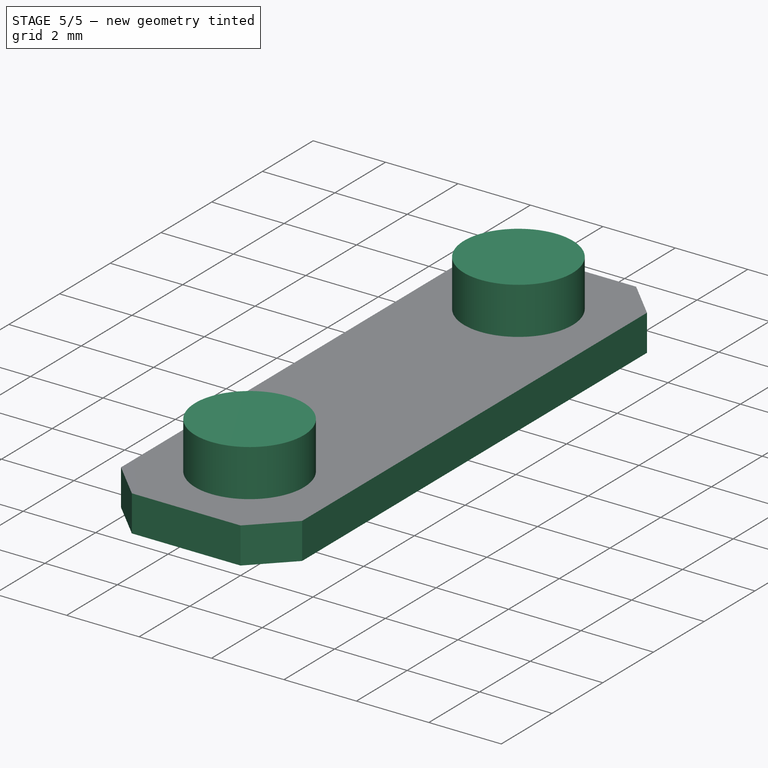
[diagram: stage 5 of 5 — iso view after this stage's code; geometry added in this stage tinted green]
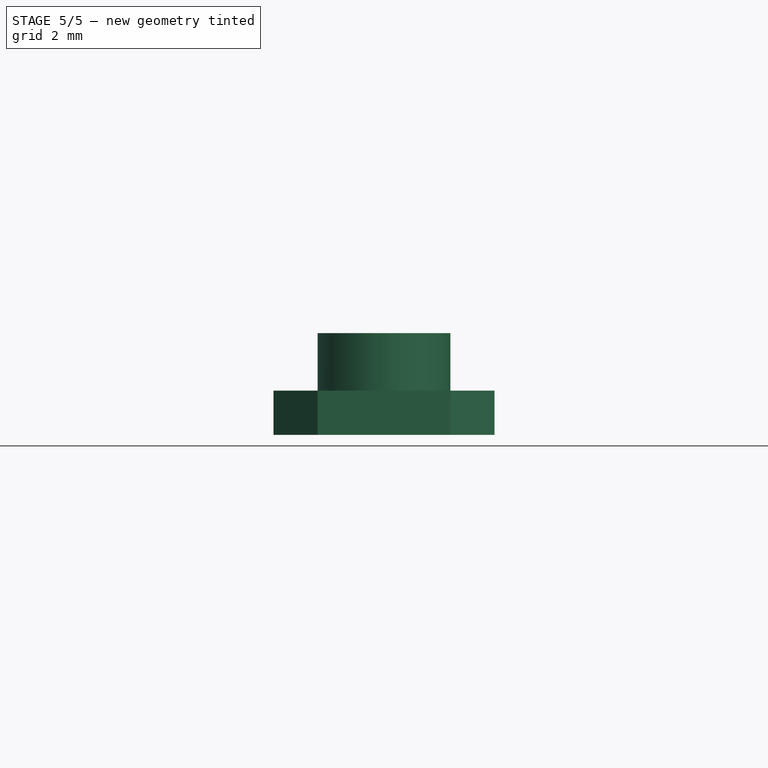
[diagram: stage 5 of 5 — front view after this stage's code; geometry added in this stage tinted green]
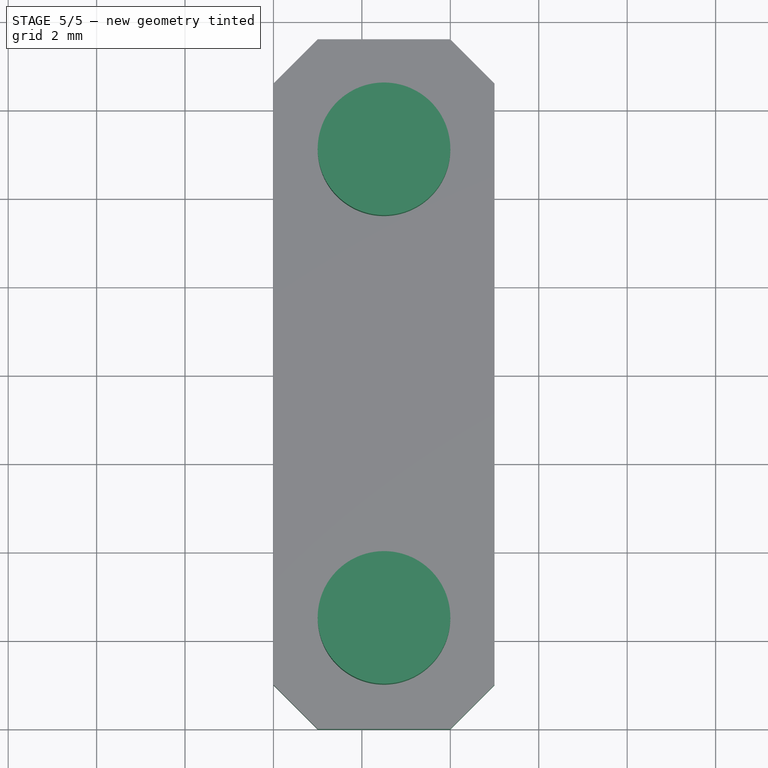
[diagram: stage 5 of 5 — top view after this stage's code; geometry added in this stage tinted green]
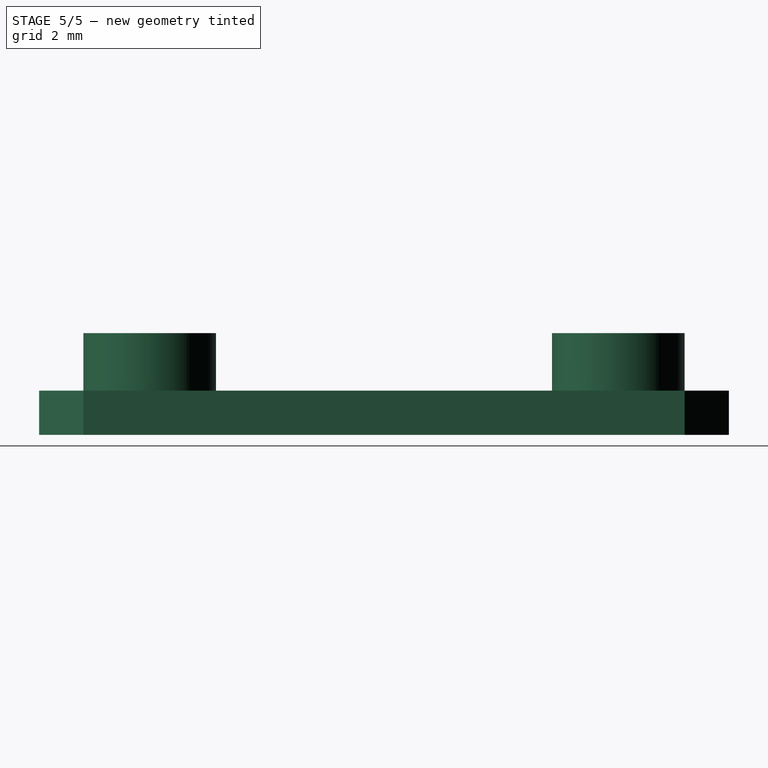
[diagram: stage 5 of 5 — right view after this stage's code; geometry added in this stage tinted green]
FEATURE [PartDesign::SubShapeBinder] Reference010  label="Reference010(Pad005)"
  BindCopyOnChange = 0
  BindMode = 0
  ClaimChildren = false
  EdgeTolerance = 1e-06
  FillStyle = 0
  Fuse = true
  MakeFace = true
  MergeEdges = true
  OffsetFill = false
  OffsetIntersection = false
  OffsetJoinType = 0
  OffsetOpenResult = false
  Outline = false
  PartialLoad = false
  Relative = true
  SplitEdges = false
  Support = -> [Body001[Pad005.]]
  TightBound = false
  TreeRank = 453
  _Version = 8
FEATURE [PartDesign::Boolean] Boolean003
  BaseFeature = -> Chamfer
  ClaimAllChildren = false
  ExportMode = 0
  Group = -> [Reference010]
  NewSolid = false
  Refine = true
  Suppress = false
  TreeRank = 454
  Type = 1
  _ExportChildren = -> [Reference010]
  _GroupVersion = 1
FEATURE [Sketcher::SketchObject] Sketch006023
  ArcFitTolerance = 1e-06
  AttachmentSupport = -> [Boolean003]
  ExternalBSplineMaxDegree = 5
  ExternalBSplineTolerance = 0.0001
  ExternalGeometry = -> [Boolean003,Sketch004]
  FullyConstrained = true
  InternalTolerance = 1e-06
  MakeInternals = false
  MapMode = 5
  Placement = pos=(220,0,0) rot=(0.57735,0.57735,0.57735;2.0944rad)
  Support = -> [Boolean003]
  TreeRank = 443
  sketch-geometry (12):
    g0: LineSegment StartX=52 StartY=-0.001 StartZ=0 EndX=52.8 EndY=-0.001 EndZ=0
    g1: LineSegment StartX=52.8 StartY=-0.001 StartZ=0 EndX=52.8 EndY=3.274 EndZ=0
    g2: LineSegment StartX=52.8 StartY=3.274 StartZ=0 EndX=52 EndY=3.274 EndZ=0
    g3: LineSegment StartX=52 StartY=3.274 StartZ=0 EndX=52 EndY=2.62471 EndZ=0
    g4: LineSegment StartX=35.6 StartY=-0.001 StartZ=0 EndX=34.8 EndY=-0.001 EndZ=0
    g5: LineSegment StartX=34.8 StartY=-0.001 StartZ=0 EndX=34.8 EndY=3.274 EndZ=0
    g6: LineSegment StartX=34.8 StartY=3.274 StartZ=0 EndX=35.6 EndY=3.274 EndZ=0
    g7: LineSegment StartX=35.6 StartY=3.274 StartZ=0 EndX=35.6 EndY=2.62471 EndZ=0
    g8: ArcOfCircle CenterX=52.75 CenterY=1.7 CenterZ=0 NormalX=0 NormalY=0 NormalZ=1 AngleXU=0 Radius=1.19063 StartAngle=2.25225 EndAngle=4.03094
    g9: ArcOfCircle CenterX=34.85 CenterY=1.7 CenterZ=0 NormalX=0 NormalY=0 NormalZ=1 AngleXU=0 Radius=1.19063 StartAngle=5.39384 EndAngle=7.17253
    g10: LineSegment StartX=52 StartY=0.77529 StartZ=0 EndX=52 EndY=-0.001 EndZ=0
    g11: LineSegment StartX=35.6 StartY=0.77529 StartZ=0 EndX=35.6 EndY=-0.001 EndZ=0
  constraints (35):
    c: Coincident(g0,g1)
    c: Coincident(g1,g2)
    c: Coincident(g2,g3)
    c: Coincident(g10,g0)
    c: Horizontal(g0)
    c: Vertical(g1)
    c: Coincident(g4,g5)
    c: Coincident(g5,g6)
    c: Coincident(g6,g7)
    c: Coincident(g11,g4)
    c: Horizontal(g4)
    c: Horizontal(g6)
    c: Vertical(g5)
    c: Vertical(g7)
    c: PointOnObject(g-5,g6)
    c: Equal(g0,g4)
    c: Distance(g0) = 0.8
    c: Coincident(g8,g-3)
    c: Coincident(g8,g-4)
    c: Coincident(g9,g-6)
    c: PointOnObject(g3,g8)
    c: PointOnObject(g9,g-6)
    c: Coincident(g7,g9)
    c: Coincident(g11,g9)
    c: Vertical(g6,g-5)
    c: Vertical(g11)
    c: Vertical(g9,g-5)
    c: Horizontal(g4,g0)
    c: Vertical(g10)
    c: Coincident(g10,g8)
    c: Equal(g8,g9)
    c: Horizontal(g0,g-4)
    c: Coincident(g2,g-5)
    c: Vertical(g3)
    c: Horizontal(g2)
FEATURE [PartDesign::Pad] Pad009
  AddSubType = 0
  AlongSketchNormal = false
  AutoTaperInnerAngle = true
  BaseFeature = -> Boolean003
  CheckUpToFaceLimits = true
  ClaimChildren = false
  Direction = (1,0,0)
  Fit = 0
  FitJoin = 0
  InnerFit = 0
  InnerFitJoin = 0
  Length = 4
  Length2 = 100
  Linearize = true
  NewSolid = false
  Profile = -> Sketch006023
  Refine = true
  Reversed = true
  Suppress = false
  TaperInnerAngle = 0
  TaperInnerAngleRev = 0
  TreeRank = 455
  Type = 0
  _ProfileBasedVersion = 1
FEATURE [PartDesign::Chamfer] Chamfer005
  AddSubType = 0
  Angle = 45
  Base = -> Pad009 [Edge80,Edge73,Edge86,Edge90]
  BaseFeature = -> Pad009
  ChamferType = 0
  FlipDirection = false
  NewSolid = false
  Refine = true
  Size = 0.8
  Size2 = 1
  SupportTransform = false
  Suppress = false
  TreeRank = 456
FEATURE [Sketcher::SketchObject] Sketch006024
  ArcFitTolerance = 1e-06
  AttachmentSupport = -> [Chamfer005]
  ExternalBSplineMaxDegree = 5
  ExternalBSplineTolerance = 0.0001
  ExternalGeometry = -> [Sketch,Chamfer005]
  FullyConstrained = true
  InternalTolerance = 1e-06
  MakeInternals = false
  MapMode = 5
  Placement = pos=(220,0,0) rot=(0.57735,0.57735,0.57735;2.0944rad)
  Support = -> [Chamfer005]
  TreeRank = 446
  sketch-geometry (6):
    g0: LineSegment StartX=41.5 StartY=0 StartZ=0 EndX=46.1 EndY=0 EndZ=0
    g1: LineSegment StartX=46.1 StartY=0 StartZ=0 EndX=46.1 EndY=1.3 EndZ=0
    g2: LineSegment StartX=41.5 StartY=1.3 StartZ=0 EndX=41.5 EndY=0 EndZ=0
    g3: LineSegment StartX=41.5 StartY=1.3 StartZ=0 EndX=46.1 EndY=1.3 EndZ=0
    g4: GeomPoint [constr] X=43.8 Y=1.3 Z=0
    g5: GeomPoint [constr] X=43.8 Y=3.274 Z=0
  constraints (14):
    c: Coincident(g0,g1)
    c: Coincident(g2,g0)
    c: Horizontal(g0)
    c: Vertical(g1)
    c: Vertical(g2)
    c: PointOnObject(g0,g-4)
    c: Coincident(g3,g2)
    c: Coincident(g3,g1)
    c: Horizontal(g3)
    c: Symmetric(g2,g1,g4)
    c: Symmetric(g-3,g-3,g5)
    c: Vertical(g4,g5)
    c: Distance(g1) = 1.3
    c: Distance(g3) = 4.6
FEATURE [PartDesign::Pocket] Pocket009
  AddSubType = 1
  AutoTaperInnerAngle = true
  BaseFeature = -> Chamfer005
  CheckUpToFaceLimits = true
  ClaimChildren = false
  Fit = 0.1
  FitJoin = 2
  InnerFit = 0
  InnerFitJoin = 0
  Length = 200
  Length2 = 100
  Linearize = true
  NewSolid = false
  Profile = -> Sketch006024
  Refine = true
  Suppress = false
  TaperInnerAngle = 0
  TaperInnerAngleRev = 0
  TreeRank = 457
  Type = 0
  _ProfileBasedVersion = 1
  _Version = 1
FEATURE [Sketcher::SketchObject] Sketch006027
  ArcFitTolerance = 1e-06
  AttachmentSupport = -> [DatumPlane003]
  ExternalBSplineMaxDegree = 5
  ExternalBSplineTolerance = 0.0001
  ExternalGeometry = -> [Pocket009]
  FullyConstrained = true
  InternalTolerance = 1e-06
  MakeInternals = false
  MapMode = 5
  Placement = pos=(-7.03848,71,0) rot=(1,0,0;1.5708rad)
  Support = -> [DatumPlane003]
  TreeRank = 448
  sketch-geometry (3):
    g0: LineSegment StartX=5 StartY=3.401 StartZ=0 EndX=0 EndY=3.401 EndZ=0
    g1: LineSegment StartX=5 StartY=3.401 StartZ=0 EndX=0 EndY=0.399 EndZ=0
    g2: LineSegment StartX=0 StartY=0.399 StartZ=0 EndX=0 EndY=3.401 EndZ=0
  constraints (8):
    c: DistanceX(g-3,g0) = 5
    c: Coincident(g0,g-3)
    c: Horizontal(g0)
    c: Coincident(g1,g0)
    c: PointOnObject(g1,g-3)
    c: DistanceY(g-3,g1) = 0.4
    c: Coincident(g2,g1)
    c: Coincident(g2,g0)
FEATURE [PartDesign::Pocket] Pocket011  label="Jaw Bevel"
  AddSubType = 1
  AutoTaperInnerAngle = true
  BaseFeature = -> Pocket009
  CheckUpToFaceLimits = true
  ClaimChildren = false
  Fit = 0
  FitJoin = 0
  InnerFit = 0
  InnerFitJoin = 0
  Length = 12
  Length2 = 100
  Linearize = true
  NewSolid = false
  Profile = -> Sketch006027
  Refine = true
  Reversed = true
  Suppress = false
  TaperInnerAngle = 0
  TaperInnerAngleRev = 0
  TreeRank = 458
  Type = 0
  _ProfileBasedVersion = 1
  _Version = 1
FEATURE [Sketcher::SketchObject] Sketch006029
  ArcFitTolerance = 1e-06
  AttachmentSupport = -> [Pocket011]
  ExternalBSplineMaxDegree = 5
  ExternalBSplineTolerance = 0.0001
  ExternalGeometry = -> [Pocket011]
  FullyConstrained = true
  InternalTolerance = 1e-06
  MakeInternals = false
  MapMode = 5
  Placement = pos=(0,0,-0.001) rot=(1,0,0;3.14159rad)
  Support = -> [Pocket011]
  TreeRank = 459
  sketch-geometry (4):
    g0: Circle CenterX=216.5 CenterY=-38.5 CenterZ=0 NormalX=0 NormalY=0 NormalZ=1 AngleXU=0 Radius=1.7
    g1: Circle CenterX=216.5 CenterY=-49.1 CenterZ=0 NormalX=0 NormalY=0 NormalZ=1 AngleXU=0 Radius=1.7
    g2: GeomPoint [constr] X=220 Y=-49.1 Z=0
    g3: GeomPoint [constr] X=220 Y=-38.5 Z=0
  constraints (8):
    c: Equal(g1,g0)
    c: Vertical(g0,g1)
    c: Symmetric(g-3,g-3,g3)
    c: Symmetric(g-4,g-4,g2)
    c: Horizontal(g1,g2)
    c: Horizontal(g0,g3)
    c: Diameter(g0) = 3.4
    c: DistanceX(g0,g3) = 3.5
FEATURE [PartDesign::Pocket] Pocket013
  AddSubType = 1
  AutoTaperInnerAngle = true
  BaseFeature = -> Pocket011
  CheckUpToFaceLimits = true
  ClaimChildren = false
  Fit = 0
  FitJoin = 0
  InnerFit = 0
  InnerFitJoin = 0
  Length = 1.5
  Length2 = 100
  Linearize = true
  NewSolid = false
  Profile = -> Sketch006029
  Refine = true
  Suppress = false
  TaperInnerAngle = 0
  TaperInnerAngleRev = 0
  TreeRank = 460
  Type = 0
  _ProfileBasedVersion = 1
  _Siblings = -> [Pocket011,Pocket009,Chamfer005,Pad009,Boolean003,Chamfer,Pocket004,Pocket001,Pad002]
  _Version = 1
FEATURE [Sketcher::SketchObject] Sketch006030
  ArcFitTolerance = 1e-06
  AttachmentSupport = -> [Pocket013]
  ExternalBSplineMaxDegree = 5
  ExternalBSplineTolerance = 0.0001
  ExternalGeometry = -> [Import010]
  FullyConstrained = true
  InternalTolerance = 1e-06
  MakeInternals = false
  MapMode = 5
  Placement = pos=(0,0,-0.001) rot=(1,0,0;3.14159rad)
  Support = -> [Pocket013]
  TreeRank = 374
  sketch-geometry (5):
    g0: LineSegment StartX=214 StartY=-36 StartZ=0 EndX=219 EndY=-36 EndZ=0
    g1: LineSegment StartX=219 StartY=-36 StartZ=0 EndX=219 EndY=-51.6 EndZ=0
    g2: LineSegment StartX=219 StartY=-51.6 StartZ=0 EndX=214 EndY=-51.6 EndZ=0
    g3: LineSegment StartX=214 StartY=-51.6 StartZ=0 EndX=214 EndY=-36 EndZ=0
    g4: GeomPoint [constr] X=216.5 Y=-43.8 Z=0
  constraints (12):
    c: Coincident(g0,g1)
    c: Coincident(g1,g2)
    c: Coincident(g2,g3)
    c: Coincident(g3,g0)
    c: Horizontal(g0)
    c: Horizontal(g2)
    c: Vertical(g1)
    c: Vertical(g3)
    c: Symmetric(g0,g1,g4)
    c: Symmetric(g-3,g-4,g4)
    c: DistanceY(g-3,g0) = 2.5
    c: DistanceX(g-3,g0) = 2.5
FEATURE [PartDesign::Pad] Pad011
  AddSubType = 0
  AlongSketchNormal = false
  AutoTaperInnerAngle = true
  CheckUpToFaceLimits = true
  ClaimChildren = false
  Direction = (0,0,-1)
  Fit = 0
  FitJoin = 0
  InnerFit = 0
  InnerFitJoin = 0
  Length = 1
  Length2 = 100
  Linearize = true
  NewSolid = true
  Profile = -> Sketch006030
  Refine = true
  Suppress = false
  TaperInnerAngle = 0
  TaperInnerAngleRev = 0
  TreeRank = 376
  Type = 0
  _ProfileBasedVersion = 1
FEATURE [PartDesign::Chamfer] Chamfer006
  AddSubType = 0
  Angle = 45
  Base = -> Pad011 [Edge1,Edge2,Edge5,Edge8]
  BaseFeature = -> Pad011
  ChamferType = 0
  FlipDirection = false
  NewSolid = false
  Refine = true
  Size = 1
  Size2 = 1
  SupportTransform = false
  Suppress = false
  TreeRank = 377
FEATURE [Sketcher::SketchObject] Sketch006031
  ArcFitTolerance = 1e-06
  AttachmentSupport = -> [Pocket013]
  ExternalBSplineMaxDegree = 5
  ExternalBSplineTolerance = 0.0001
  ExternalGeometry = -> [Import010]
  FullyConstrained = true
  InternalTolerance = 1e-06
  MakeInternals = false
  MapMode = 5
  Placement = pos=(0,0,-0.001) rot=(1,0,0;3.14159rad)
  Support = -> [Pocket013]
  TreeRank = 378
  sketch-geometry (4):
    g0: Circle CenterX=216.5 CenterY=-49.1 CenterZ=0 NormalX=0 NormalY=0 NormalZ=1 AngleXU=0 Radius=1.5
    g1: Circle CenterX=216.5 CenterY=-38.5 CenterZ=0 NormalX=0 NormalY=0 NormalZ=1 AngleXU=0 Radius=1.5
    g2: GeomPoint [constr] X=216.5 Y=-50.8 Z=0
    g3: GeomPoint [constr] X=216.5 Y=-50.6 Z=0
  constraints (8):
    c: Coincident(g0,g-4)
    c: Coincident(g1,g-3)
    c: PointOnObject(g2,g-4)
    c: Vertical(g2,g0)
    c: PointOnObject(g3,g0)
    c: Vertical(g3,g0)
    c: DistanceY(g2,g3) = 0.2
    c: Equal(g0,g1)
FEATURE [PartDesign::Pocket] Pocket014
  AddSubType = 0
  AutoTaperInnerAngle = true
  BaseFeature = -> Chamfer006
  CheckUpToFaceLimits = true
  ClaimChildren = false
  Fit = 0
  FitJoin = 0
  InnerFit = 0
  InnerFitJoin = 0
  Length = 1.3
  Length2 = 100
  Linearize = true
  NewSolid = false
  Profile = -> Sketch006031
  Refine = true
  Suppress = false
  TaperInnerAngle = 0
  TaperInnerAngleRev = 0
  TreeRank = 379
  Type = 0
  _ProfileBasedVersion = 1
  _Siblings = -> [Chamfer006,Pad011]
  _Version = 1
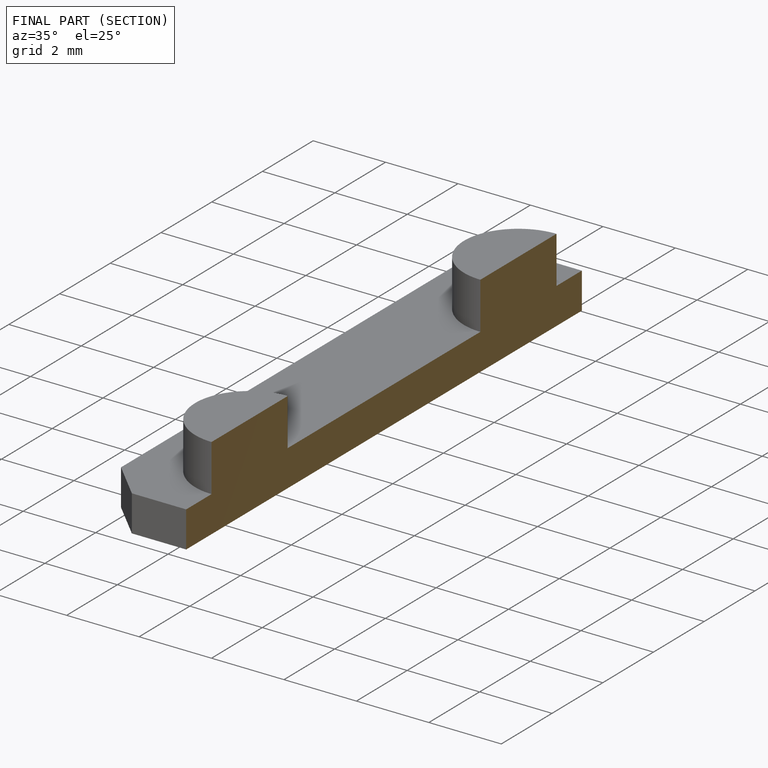
[diagram: finished part — half-section view (interior)]
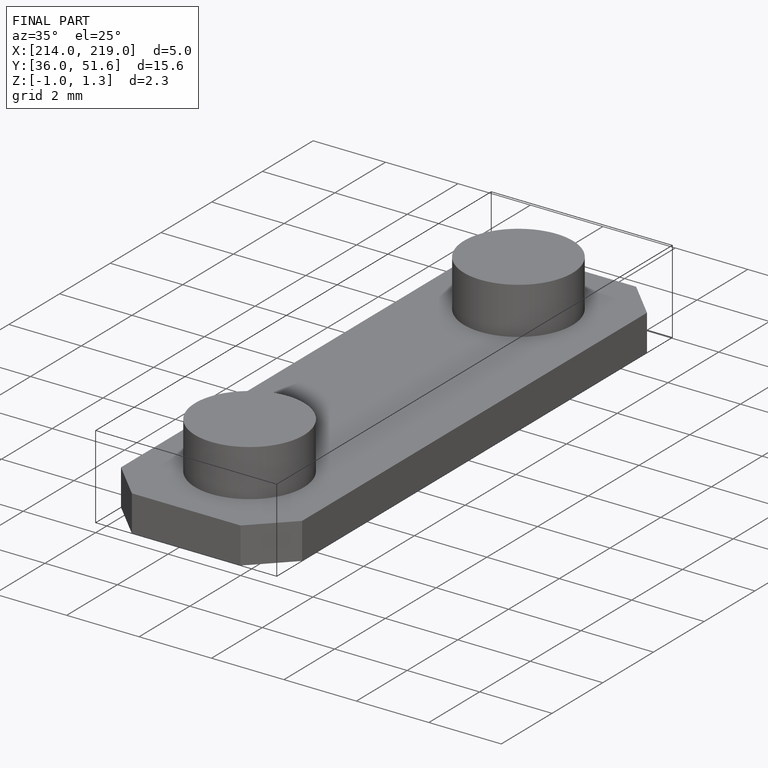
[diagram: finished part — iso view with bounding-box wireframe]
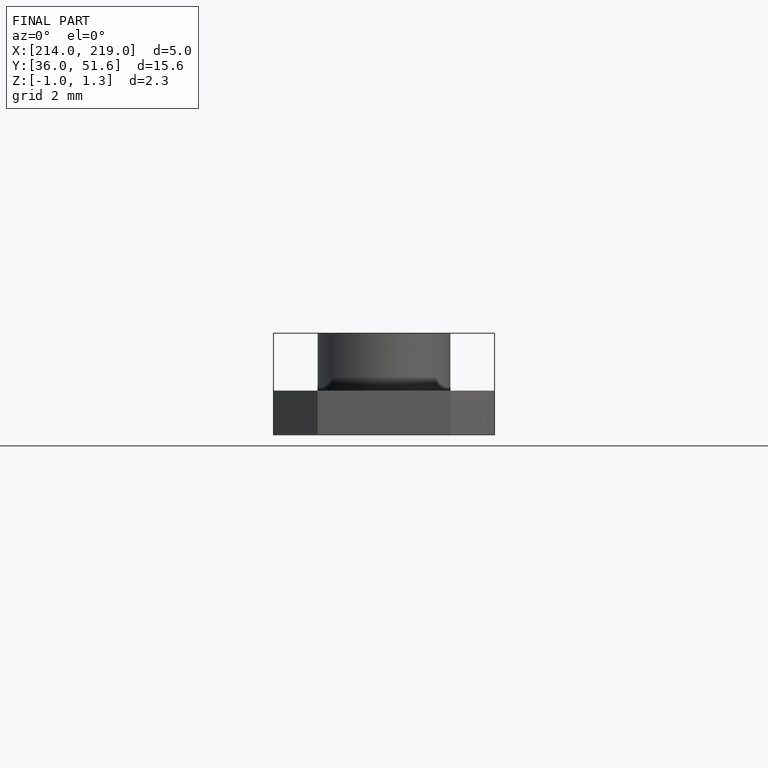
[diagram: finished part — front view with bounding-box wireframe]
